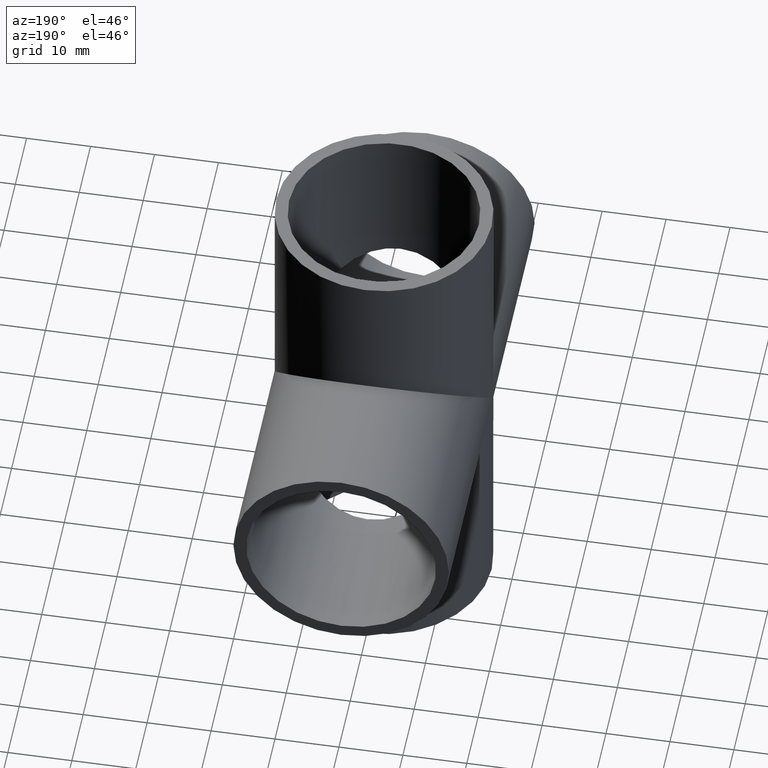
[diagram: clean part render]
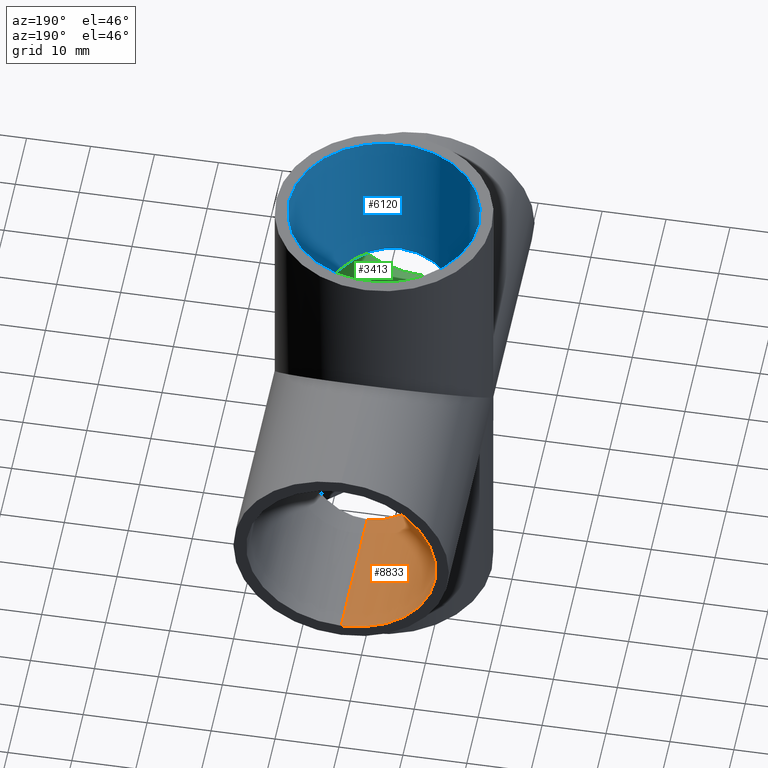
[diagram: same view with three faces highlighted in distinct colors, each labeled with its STEP entity id]
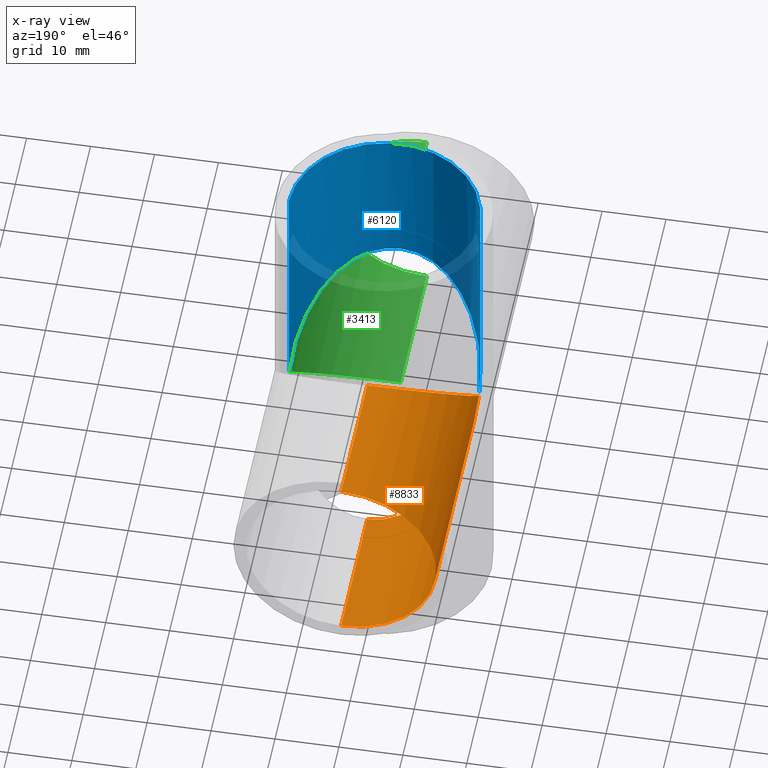
[diagram: x-ray of the same camera — body ghosted, the three highlighted faces saturated]
A machine part, auxiliary view with three faces highlighted in distinct colors.
The next image is the same camera in x-ray (body ghosted, the three faces saturated) — at least one of them is partly hidden behind the body in this view.
Their STEP definitions:

[orange] entity #8833 — the highlighted cylindrical surface (partial cylindrical patch) has radius 14.85 mm, axis along (-0, -1, -0).
#105 = ORIENTED_EDGE ( 'NONE', *, *, #4434, .T. ) ;
#236 = VERTEX_POINT ( 'NONE', #1720 ) ;
#246 = ORIENTED_EDGE ( 'NONE', *, *, #4116, .T. ) ;
#318 = DIRECTION ( 'NONE',  ( -0.0000000000000000000, -1.000000000000000000, -0.0000000000000000000 ) ) ;
#760 = FACE_OUTER_BOUND ( 'NONE', #9163, .T. ) ;
#912 = CARTESIAN_POINT ( 'NONE',  ( -14.84999999999999600, 8.698928598759536600, 8.698928598759536600 ) ) ;
#989 = EDGE_CURVE ( 'NONE', #8117, #3122, #9620, .T. ) ;
#1061 = VERTEX_POINT ( 'NONE', #5345 ) ;
#1286 = CARTESIAN_POINT ( 'NONE',  ( 0.0000000000000000000, 38.00000000000000000, 0.0000000000000000000 ) ) ;
#1712 = CARTESIAN_POINT ( 'NONE',  ( -8.698928598759538400, 14.84999999999999600, -14.84999999999999600 ) ) ;
#1720 = CARTESIAN_POINT ( 'NONE',  ( 0.0000000000000000000, 38.00000000000000000, -14.85000000000000000 ) ) ;
#2143 = CARTESIAN_POINT ( 'NONE',  ( 0.0000000000000000000, 38.00000000000000000, -14.85000000000000000 ) ) ;
#2288 =( BOUNDED_CURVE ( )  B_SPLINE_CURVE ( 3, ( #2684, #912, #3561, #9646 ),
 .UNSPECIFIED., .F., .F. ) 
 B_SPLINE_CURVE_WITH_KNOTS ( ( 4, 4 ),
 ( 1.570796326794896600, 3.141592653589793100 ),
 .UNSPECIFIED. ) 
 CURVE ( )  GEOMETRIC_REPRESENTATION_ITEM ( )  RATIONAL_B_SPLINE_CURVE ( ( 1.000000000000000000, 0.8047378541243649400, 0.8047378541243649400, 1.000000000000000000 ) ) 
 REPRESENTATION_ITEM ( '' )  );
#2562 = CARTESIAN_POINT ( 'NONE',  ( -14.84999999999999600, 8.698928598759536600, -8.698928598759536600 ) ) ;
#2684 = CARTESIAN_POINT ( 'NONE',  ( -14.85000000000000300, 0.0000000000000000000, 0.0000000000000000000 ) ) ;
#2816 = CYLINDRICAL_SURFACE ( 'NONE', #6638, 14.85000000000000000 ) ;
#2953 = AXIS2_PLACEMENT_3D ( 'NONE', #9437, #4210, #10303 ) ;
#3122 = VERTEX_POINT ( 'NONE', #9405 ) ;
#3169 = CARTESIAN_POINT ( 'NONE',  ( 0.0000000000000000000, 14.84999999999999800, -14.85000000000000000 ) ) ;
#3497 = CARTESIAN_POINT ( 'NONE',  ( -14.85000000000000300, 0.0000000000000000000, 0.0000000000000000000 ) ) ;
#3537 = ORIENTED_EDGE ( 'NONE', *, *, #6695, .F. ) ;
#3561 = CARTESIAN_POINT ( 'NONE',  ( -8.698928598759540200, 14.84999999999999600, 14.84999999999999600 ) ) ;
#3777 = ORIENTED_EDGE ( 'NONE', *, *, #989, .F. ) ;
#3910 = ORIENTED_EDGE ( 'NONE', *, *, #7980, .F. ) ;
#3962 = CIRCLE ( 'NONE', #2953, 14.85000000000000000 ) ;
#4116 = EDGE_CURVE ( 'NONE', #236, #1061, #3962, .T. ) ;
#4210 = DIRECTION ( 'NONE',  ( 0.0000000000000000000, 1.000000000000000000, 0.0000000000000000000 ) ) ;
#4434 = EDGE_CURVE ( 'NONE', #1061, #6648, #11031, .T. ) ;
#5299 = VECTOR ( 'NONE', #7333, 1000.000000000000000 ) ;
#5345 = CARTESIAN_POINT ( 'NONE',  ( 1.818600496733819600E-015, 38.00000000000000000, 14.85000000000000000 ) ) ;
#6400 = CARTESIAN_POINT ( 'NONE',  ( 1.818600496733819600E-015, 38.00000000000000000, 14.85000000000000000 ) ) ;
#6489 = DIRECTION ( 'NONE',  ( 0.0000000000000000000, 0.0000000000000000000, -1.000000000000000000 ) ) ;
#6638 = AXIS2_PLACEMENT_3D ( 'NONE', #1286, #7362, #6489 ) ;
#6648 = VERTEX_POINT ( 'NONE', #10664 ) ;
#6675 = VECTOR ( 'NONE', #318, 1000.000000000000000 ) ;
#6695 = EDGE_CURVE ( 'NONE', #236, #8117, #9946, .T. ) ;
#7333 = DIRECTION ( 'NONE',  ( -0.0000000000000000000, -1.000000000000000000, -0.0000000000000000000 ) ) ;
#7362 = DIRECTION ( 'NONE',  ( -0.0000000000000000000, -1.000000000000000000, -0.0000000000000000000 ) ) ;
#7980 = EDGE_CURVE ( 'NONE', #3122, #6648, #2288, .T. ) ;
#8117 = VERTEX_POINT ( 'NONE', #11228 ) ;
#8833 = ADVANCED_FACE ( 'NONE', ( #760 ), #2816, .F. ) ;
#9163 = EDGE_LOOP ( 'NONE', ( #246, #105, #3910, #3777, #3537 ) ) ;
#9405 = CARTESIAN_POINT ( 'NONE',  ( -14.85000000000000300, 0.0000000000000000000, 0.0000000000000000000 ) ) ;
#9437 = CARTESIAN_POINT ( 'NONE',  ( 0.0000000000000000000, 38.00000000000000000, 0.0000000000000000000 ) ) ;
#9620 =( BOUNDED_CURVE ( )  B_SPLINE_CURVE ( 3, ( #3169, #1712, #2562, #3497 ),
 .UNSPECIFIED., .F., .T. ) 
 B_SPLINE_CURVE_WITH_KNOTS ( ( 4, 4 ),
 ( 0.0000000000000000000, 1.570796326794896800 ),
 .UNSPECIFIED. ) 
 CURVE ( )  GEOMETRIC_REPRESENTATION_ITEM ( )  RATIONAL_B_SPLINE_CURVE ( ( 1.000000000000000000, 0.8047378541243649400, 0.8047378541243649400, 1.000000000000000000 ) ) 
 REPRESENTATION_ITEM ( '' )  );
#9646 = CARTESIAN_POINT ( 'NONE',  ( 1.818600496733819600E-015, 14.84999999999999800, 14.85000000000000000 ) ) ;
#9946 = LINE ( 'NONE', #2143, #5299 ) ;
#10303 = DIRECTION ( 'NONE',  ( 0.0000000000000000000, 0.0000000000000000000, 1.000000000000000000 ) ) ;
#10664 = CARTESIAN_POINT ( 'NONE',  ( 1.818600496733819600E-015, 14.84999999999999800, 14.85000000000000000 ) ) ;
#11031 = LINE ( 'NONE', #6400, #6675 ) ;
#11228 = CARTESIAN_POINT ( 'NONE',  ( 0.0000000000000000000, 14.84999999999999800, -14.85000000000000000 ) ) ;

[blue] entity #6120 — the highlighted cylindrical surface (partial cylindrical patch) has radius 14.85 mm, axis along (-0, -0, -1).
#27 = CARTESIAN_POINT ( 'NONE',  ( -14.73456172160043600, -1.848023504273507100, 18.81210979233440000 ) ) ;
#34 = CARTESIAN_POINT ( 'NONE',  ( -14.50004707780246300, -3.204861111111114300, 20.88261217948717500 ) ) ;
#41 = CARTESIAN_POINT ( 'NONE',  ( -14.58982165144694500, -2.767598991720088700, 22.56169871794871500 ) ) ;
#52 = CARTESIAN_POINT ( 'NONE',  ( -14.56416761953289000, -2.899572649572652600, 15.70966880341880600 ) ) ;
#54 = EDGE_CURVE ( 'NONE', #1754, #3979, #1163, .T. ) ;
#71 = CARTESIAN_POINT ( 'NONE',  ( -14.64220264315060200, -2.475560897435900500, 22.88076756143162200 ) ) ;
#74 = CARTESIAN_POINT ( 'NONE',  ( -14.84999172751882700, -0.01572333099768938000, 20.44957341584769800 ) ) ;
#77 = CARTESIAN_POINT ( 'NONE',  ( 14.84999999999999600, -8.698928598759536600, 8.698928598759536600 ) ) ;
#123 = CARTESIAN_POINT ( 'NONE',  ( -14.73026765228740800, -1.881944444444447300, 38.00000000000000000 ) ) ;
#124 = VECTOR ( 'NONE', #572, 1000.000000000000000 ) ;
#126 = CARTESIAN_POINT ( 'NONE',  ( 0.0000000000000000000, 0.0000000000000000000, 15.70966880341880600 ) ) ;
#129 = CARTESIAN_POINT ( 'NONE',  ( -14.64443929474967700, -2.462604760027172500, 16.80437171508008000 ) ) ;
#130 = VERTEX_POINT ( 'NONE', #3730 ) ;
#132 = CARTESIAN_POINT ( 'NONE',  ( -14.84999155843270000, -0.01587137685478040600, 17.38918729193469700 ) ) ;
#134 = CARTESIAN_POINT ( 'NONE',  ( -14.52216516222309300, -3.103098290598293600, 21.87983481904380400 ) ) ;
#135 = CARTESIAN_POINT ( 'NONE',  ( -14.71175359326743300, -2.022795441989680800, 18.47482379483311000 ) ) ;
#137 = FACE_BOUND ( 'NONE', #1322, .T. ) ;
#139 = DIRECTION ( 'NONE',  ( 0.0000000000000000000, 0.0000000000000000000, 1.000000000000000000 ) ) ;
#141 = DIRECTION ( 'NONE',  ( 0.0000000000000000000, 0.0000000000000000000, 1.000000000000000000 ) ) ;
#144 = EDGE_CURVE ( 'NONE', #4431, #9936, #6551, .T. ) ;
#162 = CARTESIAN_POINT ( 'NONE',  ( -14.56111418303238400, -2.915306975753125600, 22.28264197284765300 ) ) ;
#172 = LINE ( 'NONE', #6670, #6828 ) ;
#174 = CARTESIAN_POINT ( 'NONE',  ( -14.52387711898802900, -3.095123581448026700, 21.79104937261917400 ) ) ;
#176 = VERTEX_POINT ( 'NONE', #8804 ) ;
#179 = CARTESIAN_POINT ( 'NONE',  ( -14.85000000000000700, -0.01147758841644687700, 17.52654947811956300 ) ) ;
#182 = CARTESIAN_POINT ( 'NONE',  ( -14.55912869069465100, -2.925611819501599400, 14.74092257493849800 ) ) ;
#196 = B_SPLINE_CURVE_WITH_KNOTS ( 'NONE', 3,
 ( #3148, #9240, #132, #9851 ),
 .UNSPECIFIED., .F., .F.,
 ( 4, 4 ),
 ( 0.0003122501354589170100, 0.0004517222834945358900 ),
 .UNSPECIFIED. ) ;
#200 = EDGE_CURVE ( 'NONE', #1210, #10174, #9974, .T. ) ;
#209 = CARTESIAN_POINT ( 'NONE',  ( -14.66037236169159300, -2.365582849225430300, 21.99749808026175700 ) ) ;
#216 = ORIENTED_EDGE ( 'NONE', *, *, #373, .T. ) ;
#224 =( BOUNDED_CURVE ( )  B_SPLINE_CURVE ( 3, ( #2467, #7651, #8517, #3330 ),
 .UNSPECIFIED., .F., .F. ) 
 B_SPLINE_CURVE_WITH_KNOTS ( ( 4, 4 ),
 ( 1.707085072984606100, 1.730776373722776400 ),
 .UNSPECIFIED. ) 
 CURVE ( )  GEOMETRIC_REPRESENTATION_ITEM ( )  RATIONAL_B_SPLINE_CURVE ( ( 1.000000000000000000, 0.9999532274027069800, 0.9999532274027069800, 1.000000000000000000 ) ) 
 REPRESENTATION_ITEM ( '' )  );
#226 = VERTEX_POINT ( 'NONE', #4226 ) ;
#231 = DIRECTION ( 'NONE',  ( 0.0000000000000000000, 0.0000000000000000000, 1.000000000000000000 ) ) ;
#238 = CARTESIAN_POINT ( 'NONE',  ( -14.72518647134776500, -1.921672188253194400, 16.89713396308832900 ) ) ;
#256 = VERTEX_POINT ( 'NONE', #2986 ) ;
#261 = ORIENTED_EDGE ( 'NONE', *, *, #3398, .T. ) ;
#262 = EDGE_CURVE ( 'NONE', #9133, #5276, #5906, .T. ) ;
#283 = VERTEX_POINT ( 'NONE', #11221 ) ;
#322 = CARTESIAN_POINT ( 'NONE',  ( -14.59052494634365800, -2.763888888888891500, 38.00000000000000000 ) ) ;
#341 = VECTOR ( 'NONE', #10321, 1000.000000000000000 ) ;
#345 = CARTESIAN_POINT ( 'NONE',  ( 14.85000000000000000, 0.0000000000000000000, -9.093002483669097800E-016 ) ) ;
#346 = CARTESIAN_POINT ( 'NONE',  ( -14.58886561642403700, -2.772634131276712200, 21.42534722222222900 ) ) ;
#352 = B_SPLINE_CURVE_WITH_KNOTS ( 'NONE', 3,
 ( #4515, #10607, #179, #6249 ),
 .UNSPECIFIED., .F., .F.,
 ( 4, 4 ),
 ( 0.0000000000000000000, 0.0001354148065904598600 ),
 .UNSPECIFIED. ) ;
#357 = VERTEX_POINT ( 'NONE', #10770 ) ;
#373 = EDGE_CURVE ( 'NONE', #1214, #1210, #1849, .T. ) ;
#374 = LINE ( 'NONE', #1051, #9379 ) ;
#375 = VERTEX_POINT ( 'NONE', #7770 ) ;
#395 = CARTESIAN_POINT ( 'NONE',  ( -14.49887617129146900, -3.210175819305124600, 18.96570431886437500 ) ) ;
#400 = VERTEX_POINT ( 'NONE', #5058 ) ;
#407 = CARTESIAN_POINT ( 'NONE',  ( -14.85000000000000300, -2.145661338873071200E-015, 38.00000000000000000 ) ) ;
#413 = EDGE_CURVE ( 'NONE', #4868, #10785, #6396, .T. ) ;
#418 = VERTEX_POINT ( 'NONE', #3661 ) ;
#426 = LINE ( 'NONE', #2503, #9423 ) ;
#428 =( BOUNDED_CURVE ( )  B_SPLINE_CURVE ( 3, ( #3447, #8634, #5192, #11264 ),
 .UNSPECIFIED., .F., .T. ) 
 B_SPLINE_CURVE_WITH_KNOTS ( ( 4, 4 ),
 ( 1.754721974791197100, 1.778975376418713900 ),
 .UNSPECIFIED. ) 
 CURVE ( )  GEOMETRIC_REPRESENTATION_ITEM ( )  RATIONAL_B_SPLINE_CURVE ( ( 1.000000000000000000, 0.9999509816431695300, 0.9999509816431695300, 1.000000000000000000 ) ) 
 REPRESENTATION_ITEM ( '' )  );
#436 = CARTESIAN_POINT ( 'NONE',  ( 0.0000000000000000000, 0.0000000000000000000, 20.88261217948717500 ) ) ;
#443 = ORIENTED_EDGE ( 'NONE', *, *, #200, .T. ) ;
#454 = DIRECTION ( 'NONE',  ( 0.0000000000000000000, 0.0000000000000000000, -1.000000000000000000 ) ) ;
#464 = CARTESIAN_POINT ( 'NONE',  ( -14.67988758107137100, -2.241294404380344700, 16.74425747863248000 ) ) ;
#482 = VERTEX_POINT ( 'NONE', #1368 ) ;
#485 = B_SPLINE_CURVE_WITH_KNOTS ( 'NONE', 3,
 ( #4132, #2270, #544, #1385 ),
 .UNSPECIFIED., .F., .F.,
 ( 4, 4 ),
 ( 0.0000000000000000000, 0.0003009990987655934000 ),
 .UNSPECIFIED. ) ;
#486 = EDGE_CURVE ( 'NONE', #6215, #7050, #10125, .T. ) ;
#490 = ORIENTED_EDGE ( 'NONE', *, *, #9398, .T. ) ;
#494 = CARTESIAN_POINT ( 'NONE',  ( -14.65869100253752700, -2.408514913823789800, 19.77438537582399300 ) ) ;
#509 = CARTESIAN_POINT ( 'NONE',  ( -14.65615251822034000, -2.391684666165157400, 21.62351370788497100 ) ) ;
#512 = CARTESIAN_POINT ( 'NONE',  ( -14.67252529607921100, -2.288995726495729200, 17.57532051282051500 ) ) ;
#526 = CARTESIAN_POINT ( 'NONE',  ( -14.69204012226180500, -2.161331125718765300, 14.74186587884419300 ) ) ;
#530 = CARTESIAN_POINT ( 'NONE',  ( -14.85000000000000300, -3.211811764660815900E-015, 38.00000000000000000 ) ) ;
#544 = CARTESIAN_POINT ( 'NONE',  ( -14.63682550716862500, -2.507423518474488900, 23.07871144416032300 ) ) ;
#547 = VECTOR ( 'NONE', #8177, 1000.000000000000000 ) ;
#551 = VERTEX_POINT ( 'NONE', #3226 ) ;
#565 = B_SPLINE_CURVE_WITH_KNOTS ( 'NONE', 3,
 ( #1880, #7928, #8836, #3632, #9721, #4490, #10582, #5371, #162, #6221 ),
 .UNSPECIFIED., .F., .F.,
 ( 4, 2, 2, 2, 4 ),
 ( 0.0000000000000000000, 0.0001515673275128925900, 0.0003031346550257851700, 0.0004547019825386777600, 0.0006062693100515703500 ),
 .UNSPECIFIED. ) ;
#572 = DIRECTION ( 'NONE',  ( -0.0000000000000000000, -0.0000000000000000000, -1.000000000000000000 ) ) ;
#576 = CARTESIAN_POINT ( 'NONE',  ( -14.49250809295248600, -3.238782051282054200, 15.14864825387286400 ) ) ;
#583 = EDGE_CURVE ( 'NONE', #3926, #9801, #5569, .T. ) ;
#589 = CARTESIAN_POINT ( 'NONE',  ( -14.63721500122606200, -2.504913150135814600, 21.70245230151643800 ) ) ;
#595 = CARTESIAN_POINT ( 'NONE',  ( -14.63057081285594800, -2.543402777777780800, 22.15464743589743800 ) ) ;
#636 = EDGE_CURVE ( 'NONE', #1624, #4815, #485, .T. ) ;
#639 = ORIENTED_EDGE ( 'NONE', *, *, #1325, .T. ) ;
#645 = CARTESIAN_POINT ( 'NONE',  ( -14.73026765228741100, -1.881944444444447300, 21.00849066840277500 ) ) ;
#665 = CARTESIAN_POINT ( 'NONE',  ( -14.50004707780246300, -3.204861111111114300, 16.72729700854700900 ) ) ;
#684 = B_SPLINE_CURVE_WITH_KNOTS ( 'NONE', 3,
 ( #1252, #6448, #8187, #3012, #9093, #3869, #9965, #4747, #10835, #5616 ),
 .UNSPECIFIED., .F., .F.,
 ( 4, 3, 3, 4 ),
 ( 0.0000000000000000000, 3.967853954546680500E-005, 7.938922823516067800E-005, 0.0001587106871340224300 ),
 .UNSPECIFIED. ) ;
#688 = B_SPLINE_CURVE_WITH_KNOTS ( 'NONE', 3,
 ( #723, #4035, #3276, #4260, #8229, #788, #10028, #7378, #7410, #1563, #3313, #5020 ),
 .UNSPECIFIED., .F., .F.,
 ( 4, 2, 2, 2, 2, 4 ),
 ( 0.0000000000000000000, 0.0002312696900052215400, 0.0004625393800104430700, 0.0006938090700156645800, 0.0008094439150182754200, 0.0009250787600208861500 ),
 .UNSPECIFIED. ) ;
#693 = CARTESIAN_POINT ( 'NONE',  ( -14.71613015314789100, -1.989516864899184600, 17.07620924957550900 ) ) ;
#723 = CARTESIAN_POINT ( 'NONE',  ( -14.63047866432969000, -2.543932792467951600, 15.59094551282051500 ) ) ;
#730 = EDGE_CURVE ( 'NONE', #8127, #10354, #1391, .T. ) ;
#750 = DIRECTION ( 'NONE',  ( -0.0000000000000000000, -0.0000000000000000000, -1.000000000000000000 ) ) ;
#761 = CARTESIAN_POINT ( 'NONE',  ( -14.62104970179496600, -2.598270989708946700, 17.05654687767961200 ) ) ;
#764 = ORIENTED_EDGE ( 'NONE', *, *, #8194, .F. ) ;
#788 = CARTESIAN_POINT ( 'NONE',  ( -14.71148457828470900, -2.024761317592541900, 15.48268905999991000 ) ) ;
#794 = CARTESIAN_POINT ( 'NONE',  ( -14.85000000000000300, -2.705448381606942100E-015, 19.50033386752137300 ) ) ;
#802 = CARTESIAN_POINT ( 'NONE',  ( -14.54565085630250500, -2.991233609980392200, 23.13936105082766300 ) ) ;
#803 = DIRECTION ( 'NONE',  ( 1.000000000000000000, 0.0000000000000000000, 0.0000000000000000000 ) ) ;
#809 = CARTESIAN_POINT ( 'NONE',  ( -14.49671116578244100, -3.219974652068738200, 20.10268080550458300 ) ) ;
#829 = VECTOR ( 'NONE', #7320, 1000.000000000000000 ) ;
#833 = CARTESIAN_POINT ( 'NONE',  ( -14.50854993798558600, -3.166349009921319600, 23.14350156628420400 ) ) ;
#834 = CARTESIAN_POINT ( 'NONE',  ( -14.65641304594140200, -2.391213330885472800, 19.25084803481224700 ) ) ;
#848 = ORIENTED_EDGE ( 'NONE', *, *, #930, .T. ) ;
#851 = EDGE_CURVE ( 'NONE', #962, #8273, #1702, .T. ) ;
#879 = VERTEX_POINT ( 'NONE', #10998 ) ;
#894 = CARTESIAN_POINT ( 'NONE',  ( 0.0000000000000000000, 0.0000000000000000000, 38.00000000000000000 ) ) ;
#899 = EDGE_CURVE ( 'NONE', #4783, #7732, #4014, .T. ) ;
#905 = EDGE_CURVE ( 'NONE', #9099, #10096, #10692, .T. ) ;
#910 = VERTEX_POINT ( 'NONE', #6867 ) ;
#919 = CARTESIAN_POINT ( 'NONE',  ( -14.71229677602621100, -2.017628205128208400, 20.18723290598290600 ) ) ;
#929 = CARTESIAN_POINT ( 'NONE',  ( -14.73026765228740800, -1.881944444444447300, 20.18723290598290600 ) ) ;
#930 = EDGE_CURVE ( 'NONE', #7212, #2951, #10408, .T. ) ;
#948 = EDGE_CURVE ( 'NONE', #1348, #3926, #688, .T. ) ;
#960 = CIRCLE ( 'NONE', #1323, 14.85000000000000300 ) ;
#962 = VERTEX_POINT ( 'NONE', #10966 ) ;
#988 = ORIENTED_EDGE ( 'NONE', *, *, #8602, .F. ) ;
#991 = CARTESIAN_POINT ( 'NONE',  ( -14.73026765228740800, -1.881944444444447800, 38.00000000000000000 ) ) ;
#992 = DIRECTION ( 'NONE',  ( -0.0000000000000000000, -0.0000000000000000000, -1.000000000000000000 ) ) ;
#995 = DIRECTION ( 'NONE',  ( 1.000000000000000000, 0.0000000000000000000, 0.0000000000000000000 ) ) ;
#998 = CARTESIAN_POINT ( 'NONE',  ( -14.49250809295248600, -3.238782051282054200, 18.81210979233440000 ) ) ;
#1008 = CARTESIAN_POINT ( 'NONE',  ( -14.68075166569690500, -2.236961579545934300, 18.38348835082564400 ) ) ;
#1011 = CARTESIAN_POINT ( 'NONE',  ( -14.85000000000000300, -0.01203959449271425900, 21.88544103758950500 ) ) ;
#1027 = CARTESIAN_POINT ( 'NONE',  ( -14.85000000000000300, 5.591600545147459700E-012, 17.57039110364007300 ) ) ;
#1028 = LINE ( 'NONE', #123, #10035 ) ;
#1036 = VECTOR ( 'NONE', #9061, 1000.000000000000000 ) ;
#1041 = CARTESIAN_POINT ( 'NONE',  ( -14.65136457577493100, -2.421153150116630600, 16.78087937902456200 ) ) ;
#1043 = CARTESIAN_POINT ( 'NONE',  ( -14.53640618300790700, -3.035851894467056500, 21.67182679814650100 ) ) ;
#1048 = CARTESIAN_POINT ( 'NONE',  ( -14.58886561642403700, -2.772634131276713100, 22.44297542735042600 ) ) ;
#1050 = ORIENTED_EDGE ( 'NONE', *, *, #9461, .T. ) ;
#1051 = CARTESIAN_POINT ( 'NONE',  ( -14.85000000000000300, 0.0000000000000000000, 38.00000000000000000 ) ) ;
#1052 = CARTESIAN_POINT ( 'NONE',  ( -14.51725103937407700, -3.126333710893020300, 14.85997428125830000 ) ) ;
#1063 = CARTESIAN_POINT ( 'NONE',  ( -14.71229677602621800, -2.017628205128208400, 19.57400590945512800 ) ) ;
#1071 = ORIENTED_EDGE ( 'NONE', *, *, #4407, .T. ) ;
#1080 = ORIENTED_EDGE ( 'NONE', *, *, #9934, .T. ) ;
#1084 = EDGE_CURVE ( 'NONE', #3428, #5693, #196, .T. ) ;
#1089 = LINE ( 'NONE', #4457, #10088 ) ;
#1102 = CARTESIAN_POINT ( 'NONE',  ( -14.66430105475820700, -2.341105748003279100, 22.80253793269891500 ) ) ;
#1111 = CARTESIAN_POINT ( 'NONE',  ( -14.63057081285594800, -2.543402777777780800, 22.15464743589743800 ) ) ;
#1113 = CARTESIAN_POINT ( 'NONE',  ( -14.70915526895426100, -2.040976594498669100, 16.79319972991684300 ) ) ;
#1122 = CARTESIAN_POINT ( 'NONE',  ( -14.67276946466330400, -2.287916190637070200, 16.74587689290307700 ) ) ;
#1127 = CARTESIAN_POINT ( 'NONE',  ( -14.66037236169159300, -2.365582849225430300, 21.99749808026175700 ) ) ;
#1131 = CARTESIAN_POINT ( 'NONE',  ( -14.59272498729768100, -2.790343678661900900, 19.83868494941678800 ) ) ;
#1151 = VECTOR ( 'NONE', #2380, 1000.000000000000000 ) ;
#1163 = LINE ( 'NONE', #7242, #7804 ) ;
#1171 = CARTESIAN_POINT ( 'NONE',  ( -14.66449709280562900, -2.339877136752140700, 22.85930196647970200 ) ) ;
#1179 = CARTESIAN_POINT ( 'NONE',  ( -14.50500744052164100, -3.182335486778848900, 20.17106745793269300 ) ) ;
#1186 = CARTESIAN_POINT ( 'NONE',  ( -14.54022922591151000, -3.023061332877849100, 17.45584162750112600 ) ) ;
#1189 = AXIS2_PLACEMENT_3D ( 'NONE', #5659, #454, #6534 ) ;
#1197 = CARTESIAN_POINT ( 'NONE',  ( -14.61557517869469100, -2.628205128205131300, 17.72796474358974100 ) ) ;
#1202 = CARTESIAN_POINT ( 'NONE',  ( -14.66150599112660500, -2.358548779095356100, 21.97201973608163800 ) ) ;
#1206 = CARTESIAN_POINT ( 'NONE',  ( -14.61703032055304700, -2.621275915398428900, 18.35644368951648900 ) ) ;
#1208 = CARTESIAN_POINT ( 'NONE',  ( -14.85000000000000500, -4.795286448467089200E-014, 17.29798859007675900 ) ) ;
#1210 = VERTEX_POINT ( 'NONE', #6674 ) ;
#1214 = VERTEX_POINT ( 'NONE', #665 ) ;
#1234 = ORIENTED_EDGE ( 'NONE', *, *, #3484, .F. ) ;
#1252 = CARTESIAN_POINT ( 'NONE',  ( -14.66037236169159100, -2.365582849225430700, 23.01512628538995400 ) ) ;
#1253 = VECTOR ( 'NONE', #10143, 1000.000000000000000 ) ;
#1257 = VERTEX_POINT ( 'NONE', #3725 ) ;
#1259 = CARTESIAN_POINT ( 'NONE',  ( -14.57087987324043300, -2.865651709401712700, 23.18923611111110700 ) ) ;
#1270 = DIRECTION ( 'NONE',  ( 0.0000000000000000000, 0.0000000000000000000, 1.000000000000000000 ) ) ;
#1276 = CARTESIAN_POINT ( 'NONE',  ( -14.51718350250274100, -3.126644956597751000, 19.09685370484576700 ) ) ;
#1287 = EDGE_CURVE ( 'NONE', #10754, #400, #4408, .T. ) ;
#1290 = LINE ( 'NONE', #8753, #7926 ) ;
#1307 = DIRECTION ( 'NONE',  ( -1.000000000000000000, 0.0000000000000000000, 0.0000000000000000000 ) ) ;
#1322 = EDGE_LOOP ( 'NONE', ( #9370, #1895, #3489, #4833, #2828, #9970, #6096, #8106, #9714, #9145, #216, #443 ) ) ;
#1323 = AXIS2_PLACEMENT_3D ( 'NONE', #8475, #3282, #9383 ) ;
#1325 = EDGE_CURVE ( 'NONE', #5059, #1824, #6156, .T. ) ;
#1329 = VERTEX_POINT ( 'NONE', #9532 ) ;
#1337 = CARTESIAN_POINT ( 'NONE',  ( 1.818600496733819600E-015, -14.85000000000000100, 14.85000000000000000 ) ) ;
#1340 = DIRECTION ( 'NONE',  ( -0.0000000000000000000, -0.0000000000000000000, -1.000000000000000000 ) ) ;
#1348 = VERTEX_POINT ( 'NONE', #5150 ) ;
#1350 = VERTEX_POINT ( 'NONE', #4301 ) ;
#1357 = EDGE_CURVE ( 'NONE', #8571, #4450, #5901, .T. ) ;
#1368 = CARTESIAN_POINT ( 'NONE',  ( -14.52937198889283900, -3.069177350427353600, 16.72729700854700900 ) ) ;
#1381 = EDGE_CURVE ( 'NONE', #7050, #4334, #1290, .T. ) ;
#1382 = CARTESIAN_POINT ( 'NONE',  ( -14.63689097245835700, -2.507118350105459000, 21.50030083858648000 ) ) ;
#1385 = CARTESIAN_POINT ( 'NONE',  ( -14.63057081285594800, -2.543402777777781200, 23.17227564102563900 ) ) ;
#1387 = CARTESIAN_POINT ( 'NONE',  ( -14.68980007311539100, -2.176054601256179700, 17.56467768878760800 ) ) ;
#1391 = B_SPLINE_CURVE_WITH_KNOTS ( 'NONE', 3,
 ( #464, #1122, #10710, #1041, #129, #9808, #4578, #2773 ),
 .UNSPECIFIED., .F., .F.,
 ( 4, 2, 2, 4 ),
 ( 0.0000000000000000000, 0.0001392982103960800300, 0.0002785964207921600500, 0.0005571928415843142600 ),
 .UNSPECIFIED. ) ;
#1403 = EDGE_CURVE ( 'NONE', #1329, #1459, #3614, .T. ) ;
#1429 = VECTOR ( 'NONE', #7483, 1000.000000000000000 ) ;
#1431 = CARTESIAN_POINT ( 'NONE',  ( -14.73026765228740800, -1.881944444444447300, 38.00000000000000000 ) ) ;
#1444 = CARTESIAN_POINT ( 'NONE',  ( -14.49265733206916600, -3.238114254229960100, 15.18817592658856700 ) ) ;
#1450 = CARTESIAN_POINT ( 'NONE',  ( -14.59052494634365800, -2.763888888888891500, 15.70966880341880600 ) ) ;
#1457 = VECTOR ( 'NONE', #6139, 1000.000000000000000 ) ;
#1459 = VERTEX_POINT ( 'NONE', #2546 ) ;
#1462 = CARTESIAN_POINT ( 'NONE',  ( -14.64204713784421400, -2.476480664835122500, 21.82196208197438000 ) ) ;
#1473 = DIRECTION ( 'NONE',  ( 0.0000000000000000000, 0.0000000000000000000, 1.000000000000000000 ) ) ;
#1474 = CARTESIAN_POINT ( 'NONE',  ( -14.73447478578084400, -1.848716656279767000, 15.10909594242559700 ) ) ;
#1482 = ORIENTED_EDGE ( 'NONE', *, *, #2189, .T. ) ;
#1484 = CARTESIAN_POINT ( 'NONE',  ( -14.49887617129146600, -3.210175819305129500, 15.30224278040281400 ) ) ;
#1511 = CARTESIAN_POINT ( 'NONE',  ( -14.64390978743835200, -2.466688707773167600, 14.69296723753726800 ) ) ;
#1521 =( BOUNDED_CURVE ( )  B_SPLINE_CURVE ( 3, ( #2892, #6326, #1131, #8977 ),
 .UNSPECIFIED., .F., .F. ) 
 B_SPLINE_CURVE_WITH_KNOTS ( ( 4, 4 ),
 ( 1.697868294297002000, 1.790663300812176600 ),
 .UNSPECIFIED. ) 
 CURVE ( )  GEOMETRIC_REPRESENTATION_ITEM ( )  RATIONAL_B_SPLINE_CURVE ( ( 1.000000000000000000, 0.9992825526167830000, 0.9992825526167830000, 1.000000000000000000 ) ) 
 REPRESENTATION_ITEM ( '' )  );
#1538 = CARTESIAN_POINT ( 'NONE',  ( -14.85000000000000300, 0.0000000000000000000, 38.00000000000000000 ) ) ;
#1563 = CARTESIAN_POINT ( 'NONE',  ( -14.73385966681294000, -1.853650051928849900, 15.22760366590730300 ) ) ;
#1565 = VECTOR ( 'NONE', #2845, 1000.000000000000000 ) ;
#1570 = CARTESIAN_POINT ( 'NONE',  ( -14.71690882919901200, -1.983707264957267800, 17.14998372395833200 ) ) ;
#1571 = CARTESIAN_POINT ( 'NONE',  ( -14.71229677602621100, -2.017628205128208400, 22.94383930956196200 ) ) ;
#1585 = EDGE_CURVE ( 'NONE', #6521, #6699, #6544, .T. ) ;
#1612 = VERTEX_POINT ( 'NONE', #10032 ) ;
#1620 = CARTESIAN_POINT ( 'NONE',  ( -14.64220264315060200, -2.475560897435900500, 22.88076756143162200 ) ) ;
#1624 = VERTEX_POINT ( 'NONE', #1620 ) ;
#1641 = CYLINDRICAL_SURFACE ( 'NONE', #9064, 14.85000000000000300 ) ;
#1648 = CARTESIAN_POINT ( 'NONE',  ( -14.63160109121488600, -2.538304653818791700, 17.00073377616719100 ) ) ;
#1649 = LINE ( 'NONE', #9786, #8573 ) ;
#1664 = VERTEX_POINT ( 'NONE', #4696 ) ;
#1671 = LINE ( 'NONE', #8413, #10387 ) ;
#1679 = EDGE_CURVE ( 'NONE', #6567, #8509, #7772, .T. ) ;
#1686 = CARTESIAN_POINT ( 'NONE',  ( -14.85000000000000300, -2.298964014476537400E-015, 38.00000000000000000 ) ) ;
#1698 = DIRECTION ( 'NONE',  ( -0.0000000000000000000, -0.0000000000000000000, -1.000000000000000000 ) ) ;
#1702 = LINE ( 'NONE', #7557, #6311 ) ;
#1721 = CARTESIAN_POINT ( 'NONE',  ( -14.53253439463683900, -3.054514461658099900, 23.24573067934163700 ) ) ;
#1722 = CARTESIAN_POINT ( 'NONE',  ( -14.69166594291784000, -2.163882786112993000, 19.21262576960240400 ) ) ;
#1732 = VECTOR ( 'NONE', #4445, 1000.000000000000000 ) ;
#1752 = B_SPLINE_CURVE_WITH_KNOTS ( 'NONE', 3,
 ( #5635, #8228, #2225, #8270, #3095, #9194, #3960, #10062 ),
 .UNSPECIFIED., .F., .F.,
 ( 4, 2, 2, 4 ),
 ( 0.0000000000000000000, 0.0001030623643643280300, 0.0002061247287286560500, 0.0004122494574573127600 ),
 .UNSPECIFIED. ) ;
#1754 = VERTEX_POINT ( 'NONE', #3741 ) ;
#1768 = CARTESIAN_POINT ( 'NONE',  ( -14.58982165144694500, -2.767598991720088700, 22.56169871794871500 ) ) ;
#1776 = VERTEX_POINT ( 'NONE', #8792 ) ;
#1790 = DIRECTION ( 'NONE',  ( 1.000000000000000000, 0.0000000000000000000, 0.0000000000000000000 ) ) ;
#1793 = LINE ( 'NONE', #4923, #1253 ) ;
#1795 = CARTESIAN_POINT ( 'NONE',  ( -14.84999159260732800, -0.01584145475512996000, 22.03006333139042600 ) ) ;
#1814 = DIRECTION ( 'NONE',  ( 0.0000000000000000000, 0.0000000000000000000, 1.000000000000000000 ) ) ;
#1824 = VERTEX_POINT ( 'NONE', #6589 ) ;
#1830 = CARTESIAN_POINT ( 'NONE',  ( 0.0000000000000000000, 0.0000000000000000000, 16.72729700854700900 ) ) ;
#1841 = CARTESIAN_POINT ( 'NONE',  ( -14.85000000000000300, 5.482509371925565400E-012, 20.53847336859692500 ) ) ;
#1849 = LINE ( 'NONE', #6213, #6735 ) ;
#1872 = EDGE_CURVE ( 'NONE', #7524, #256, #4678, .T. ) ;
#1873 =( BOUNDED_CURVE ( )  B_SPLINE_CURVE ( 3, ( #1111, #5711, #4654, #4379 ),
 .UNSPECIFIED., .F., .T. ) 
 B_SPLINE_CURVE_WITH_KNOTS ( ( 4, 4 ),
 ( 4.540267450471123600, 4.585317012882583800 ),
 .UNSPECIFIED. ) 
 CURVE ( )  GEOMETRIC_REPRESENTATION_ITEM ( )  RATIONAL_B_SPLINE_CURVE ( ( 1.000000000000000000, 0.9998308852276466300, 0.9998308852276466300, 1.000000000000000000 ) ) 
 REPRESENTATION_ITEM ( '' )  );
#1879 = EDGE_CURVE ( 'NONE', #5680, #10794, #10250, .T. ) ;
#1880 = CARTESIAN_POINT ( 'NONE',  ( -14.49250809295248600, -3.238782051282054200, 21.88672501001602900 ) ) ;
#1895 = ORIENTED_EDGE ( 'NONE', *, *, #10323, .T. ) ;
#1898 = EDGE_CURVE ( 'NONE', #8138, #11143, #2103, .T. ) ;
#1901 = CARTESIAN_POINT ( 'NONE',  ( -14.64390978743834600, -2.466688707773176100, 18.35642877599879300 ) ) ;
#1904 = CARTESIAN_POINT ( 'NONE',  ( -14.85000000000000300, 0.0000000000000000000, 38.00000000000000000 ) ) ;
#1913 = CIRCLE ( 'NONE', #6270, 14.85000000000000300 ) ;
#1915 = ORIENTED_EDGE ( 'NONE', *, *, #3336, .T. ) ;
#1921 = FACE_OUTER_BOUND ( 'NONE', #8659, .T. ) ;
#1923 = EDGE_CURVE ( 'NONE', #7976, #9992, #1873, .T. ) ;
#1940 = CARTESIAN_POINT ( 'NONE',  ( -14.55677312784588500, -2.936758835814706500, 21.58383932903891300 ) ) ;
#1943 = ORIENTED_EDGE ( 'NONE', *, *, #3862, .T. ) ;
#1948 = ORIENTED_EDGE ( 'NONE', *, *, #6531, .T. ) ;
#1950 = CARTESIAN_POINT ( 'NONE',  ( -14.49276748644118300, -3.237621348840641100, 15.06891318072683100 ) ) ;
#1966 = CARTESIAN_POINT ( 'NONE',  ( -14.84999031455760300, -0.01696047008547296400, 20.40400891426282100 ) ) ;
#1976 = DIRECTION ( 'NONE',  ( -0.0000000000000000000, -0.0000000000000000000, -1.000000000000000000 ) ) ;
#1985 = CARTESIAN_POINT ( 'NONE',  ( 0.0000000000000000000, 0.0000000000000000000, 22.49385683760683500 ) ) ;
#1997 = CARTESIAN_POINT ( 'NONE',  ( -14.68788316767947300, -2.188925419599836000, 16.74583026044488000 ) ) ;
#2018 = ORIENTED_EDGE ( 'NONE', *, *, #6042, .T. ) ;
#2032 = ORIENTED_EDGE ( 'NONE', *, *, #6330, .F. ) ;
#2051 = ORIENTED_EDGE ( 'NONE', *, *, #1679, .T. ) ;
#2081 = CARTESIAN_POINT ( 'NONE',  ( -14.49263481381675900, -3.238215016167648400, 21.82413946720968000 ) ) ;
#2093 = CARTESIAN_POINT ( 'NONE',  ( -14.66252289122527800, -2.352218685659717100, 21.94634967337500000 ) ) ;
#2103 = LINE ( 'NONE', #4846, #11062 ) ;
#2132 = CARTESIAN_POINT ( 'NONE',  ( -14.85000000000000300, 0.0000000000000000000, 38.00000000000000000 ) ) ;
#2137 = VECTOR ( 'NONE', #10083, 1000.000000000000000 ) ;
#2157 = CARTESIAN_POINT ( 'NONE',  ( -14.55937441557791900, -2.924389689607677300, 19.21159777632266600 ) ) ;
#2164 =( BOUNDED_CURVE ( )  B_SPLINE_CURVE ( 3, ( #2351, #7708, #3474, #10368 ),
 .UNSPECIFIED., .F., .F. ) 
 B_SPLINE_CURVE_WITH_KNOTS ( ( 4, 4 ),
 ( 1.707085072984606100, 1.730776373722776400 ),
 .UNSPECIFIED. ) 
 CURVE ( )  GEOMETRIC_REPRESENTATION_ITEM ( )  RATIONAL_B_SPLINE_CURVE ( ( 1.000000000000000000, 0.9999532274027069800, 0.9999532274027069800, 1.000000000000000000 ) ) 
 REPRESENTATION_ITEM ( '' )  );
#2188 = CIRCLE ( 'NONE', #8009, 14.85000000000000300 ) ;
#2189 = EDGE_CURVE ( 'NONE', #9936, #256, #7078, .T. ) ;
#2200 = FACE_BOUND ( 'NONE', #7958, .T. ) ;
#2209 = VECTOR ( 'NONE', #6944, 1000.000000000000000 ) ;
#2213 = CARTESIAN_POINT ( 'NONE',  ( -14.68075166569691000, -2.236961579545894400, 14.72002681236409100 ) ) ;
#2225 = CARTESIAN_POINT ( 'NONE',  ( -14.55786112705849600, -2.931231268291409900, 22.15446083674351700 ) ) ;
#2227 = VERTEX_POINT ( 'NONE', #998 ) ;
#2252 = CARTESIAN_POINT ( 'NONE',  ( -14.71175359326743500, -2.022795441989647000, 14.81136225637159700 ) ) ;
#2268 = CARTESIAN_POINT ( 'NONE',  ( -14.60983130540183300, -2.660479394749724100, 21.43299934390999400 ) ) ;
#2269 = EDGE_CURVE ( 'NONE', #1612, #6946, #172, .T. ) ;
#2270 = CARTESIAN_POINT ( 'NONE',  ( -14.64183909074841900, -2.477711201211375300, 22.98124349406515400 ) ) ;
#2273 = CARTESIAN_POINT ( 'NONE',  ( -14.71205609573503300, -2.019820144005728000, 17.49294505643160800 ) ) ;
#2281 = CARTESIAN_POINT ( 'NONE',  ( 0.0000000000000000000, 0.0000000000000000000, 15.98103632478632700 ) ) ;
#2317 = CARTESIAN_POINT ( 'NONE',  ( -14.59744184709101100, -2.727427964151182500, 21.54501267091324800 ) ) ;
#2325 = CARTESIAN_POINT ( 'NONE',  ( -14.65668637656481200, -2.389562938540541000, 14.69602070868509500 ) ) ;
#2351 = CARTESIAN_POINT ( 'NONE',  ( -14.71229677602621100, -2.017628205128208400, 21.92621110443376500 ) ) ;
#2364 = EDGE_CURVE ( 'NONE', #7732, #2722, #2164, .T. ) ;
#2377 = CARTESIAN_POINT ( 'NONE',  ( -14.51718350250273900, -3.126644956597767400, 15.43339216638419800 ) ) ;
#2380 = DIRECTION ( 'NONE',  ( 0.0000000000000000000, 0.0000000000000000000, 1.000000000000000000 ) ) ;
#2391 = B_SPLINE_CURVE_WITH_KNOTS ( 'NONE', 3,
 ( #7911, #1011, #7951, #2779 ),
 .UNSPECIFIED., .F., .F.,
 ( 4, 4 ),
 ( 0.0004003692797899506200, 0.0005426848436904165600 ),
 .UNSPECIFIED. ) ;
#2392 = CARTESIAN_POINT ( 'NONE',  ( -14.59052494634365800, -2.763888888888891500, 15.86231303418803800 ) ) ;
#2399 = EDGE_CURVE ( 'NONE', #5264, #9652, #3985, .T. ) ;
#2463 = EDGE_CURVE ( 'NONE', #375, #1350, #1671, .T. ) ;
#2467 = CARTESIAN_POINT ( 'NONE',  ( -14.71229677602621100, -2.017628205128208400, 22.94383930956196200 ) ) ;
#2471 = ORIENTED_EDGE ( 'NONE', *, *, #7823, .T. ) ;
#2477 = LINE ( 'NONE', #5219, #2209 ) ;
#2503 = CARTESIAN_POINT ( 'NONE',  ( 14.85000000000000300, 1.818600496733819900E-015, 38.00000000000000000 ) ) ;
#2536 = CARTESIAN_POINT ( 'NONE',  ( -14.65356632895425200, -2.407685804581056300, 16.90193461334302700 ) ) ;
#2537 = ORIENTED_EDGE ( 'NONE', *, *, #9387, .T. ) ;
#2546 = CARTESIAN_POINT ( 'NONE',  ( -14.85000000000000300, -2.145661338873071200E-015, 14.80228365384615300 ) ) ;
#2577 = CARTESIAN_POINT ( 'NONE',  ( 0.0000000000000000000, 0.0000000000000000000, 15.86231303418803800 ) ) ;
#2597 = B_SPLINE_CURVE_WITH_KNOTS ( 'NONE', 3,
 ( #11194, #761, #1648, #7706, #2536, #8597, #3396, #9489 ),
 .UNSPECIFIED., .F., .F.,
 ( 4, 2, 2, 4 ),
 ( 4.091337135425211100E-018, 0.0002474308840103330200, 0.0003711463260154939400, 0.0004948617680206549700 ),
 .UNSPECIFIED. ) ;
#2602 = CARTESIAN_POINT ( 'NONE',  ( -14.56111418303238200, -2.915306975753123800, 23.30027017797584300 ) ) ;
#2603 = CARTESIAN_POINT ( 'NONE',  ( -14.72001548332206000, -1.961031791951024500, 19.09772866281658900 ) ) ;
#2624 = CARTESIAN_POINT ( 'NONE',  ( -14.85000000000000300, -2.298964014476537400E-015, 16.53225160256410600 ) ) ;
#2626 = LINE ( 'NONE', #6891, #2901 ) ;
#2640 = CARTESIAN_POINT ( 'NONE',  ( -14.50004707780246300, -3.204861111111114300, 17.62620192307692000 ) ) ;
#2659 = CARTESIAN_POINT ( 'NONE',  ( -14.56416761953289400, -2.899572649572652600, 16.60857371794871900 ) ) ;
#2670 = EDGE_CURVE ( 'NONE', #8675, #10772, #2626, .T. ) ;
#2675 = CARTESIAN_POINT ( 'NONE',  ( -14.60474294547104700, -2.688017733347669100, 22.56784022015144200 ) ) ;
#2677 = VECTOR ( 'NONE', #8858, 1000.000000000000000 ) ;
#2682 = ORIENTED_EDGE ( 'NONE', *, *, #899, .T. ) ;
#2689 = ORIENTED_EDGE ( 'NONE', *, *, #10783, .T. ) ;
#2694 = CARTESIAN_POINT ( 'NONE',  ( -14.50004707780246300, -3.204861111111114300, 38.00000000000000000 ) ) ;
#2700 = ORIENTED_EDGE ( 'NONE', *, *, #5277, .T. ) ;
#2706 = DIRECTION ( 'NONE',  ( 1.000000000000000000, 0.0000000000000000000, 0.0000000000000000000 ) ) ;
#2713 = ORIENTED_EDGE ( 'NONE', *, *, #7415, .T. ) ;
#2717 = CARTESIAN_POINT ( 'NONE',  ( -14.85000000000000300, 0.0000000000000000000, 38.00000000000000000 ) ) ;
#2722 = VERTEX_POINT ( 'NONE', #1127 ) ;
#2741 = B_SPLINE_CURVE_WITH_KNOTS ( 'NONE', 3,
 ( #4847, #10068, #5714, #509, #6593, #1382, #7453, #2268, #8318, #3143 ),
 .UNSPECIFIED., .F., .F.,
 ( 4, 2, 2, 2, 4 ),
 ( 3.496446946337351300E-018, 0.0001686004046069296400, 0.0003372008092138557600, 0.0005058012138207818900, 0.0006744016184277080600 ),
 .UNSPECIFIED. ) ;
#2760 = B_SPLINE_CURVE_WITH_KNOTS ( 'NONE', 3,
 ( #8776, #8862, #10614, #5392, #182, #6253, #1052, #7129, #1950, #7990 ),
 .UNSPECIFIED., .F., .F.,
 ( 4, 2, 2, 2, 4 ),
 ( 0.0000000000000000000, 0.0002339752340576003000, 0.0004679504681152005900, 0.0007019257021728008600, 0.0009359009362304011800 ),
 .UNSPECIFIED. ) ;
#2767 = VERTEX_POINT ( 'NONE', #2965 ) ;
#2773 = CARTESIAN_POINT ( 'NONE',  ( -14.59952960376422100, -2.715922559428421800, 17.01191489716880400 ) ) ;
#2779 = CARTESIAN_POINT ( 'NONE',  ( -14.84999031455760300, -0.01696047008547317500, 21.98212765424679200 ) ) ;
#2792 = CARTESIAN_POINT ( 'NONE',  ( -14.71208566464724900, -2.019220423513543600, 17.30605603317478700 ) ) ;
#2806 = CARTESIAN_POINT ( 'NONE',  ( -14.58145997052676000, -2.811678872402510400, 21.54526233595420900 ) ) ;
#2809 = CARTESIAN_POINT ( 'NONE',  ( -14.70200500440846600, -2.103160521809613700, 23.08196953723729200 ) ) ;
#2811 = CARTESIAN_POINT ( 'NONE',  ( -14.52242632460319200, -3.101876078839973500, 22.85285221922695300 ) ) ;
#2818 = EDGE_LOOP ( 'NONE', ( #3230, #9636, #6683, #8268, #1915, #4483 ) ) ;
#2828 = ORIENTED_EDGE ( 'NONE', *, *, #6372, .T. ) ;
#2845 = DIRECTION ( 'NONE',  ( 0.0000000000000000000, 0.0000000000000000000, 1.000000000000000000 ) ) ;
#2848 = CARTESIAN_POINT ( 'NONE',  ( -14.53101651688234400, -3.061430309184242700, 22.72624511625183200 ) ) ;
#2858 = EDGE_CURVE ( 'NONE', #226, #1664, #4235, .T. ) ;
#2861 = DIRECTION ( 'NONE',  ( 1.000000000000000000, 0.0000000000000000000, 0.0000000000000000000 ) ) ;
#2870 =( BOUNDED_CURVE ( )  B_SPLINE_CURVE ( 3, ( #11236, #809, #4305, #10403 ),
 .UNSPECIFIED., .F., .T. ) 
 B_SPLINE_CURVE_WITH_KNOTS ( ( 4, 4 ),
 ( 1.350929352777616700, 1.354822547913004000 ),
 .UNSPECIFIED. ) 
 CURVE ( )  GEOMETRIC_REPRESENTATION_ITEM ( )  RATIONAL_B_SPLINE_CURVE ( ( 1.000000000000000000, 0.9999987369197019800, 0.9999987369197019800, 1.000000000000000000 ) ) 
 REPRESENTATION_ITEM ( '' )  );
#2880 = VECTOR ( 'NONE', #6614, 1000.000000000000000 ) ;
#2889 = LINE ( 'NONE', #2132, #829 ) ;
#2892 = CARTESIAN_POINT ( 'NONE',  ( -14.73026765228740800, -1.881944444444447300, 19.37313034188034100 ) ) ;
#2894 = ORIENTED_EDGE ( 'NONE', *, *, #7815, .T. ) ;
#2901 = VECTOR ( 'NONE', #1698, 1000.000000000000000 ) ;
#2920 = EDGE_CURVE ( 'NONE', #5279, #357, #7636, .T. ) ;
#2951 = VERTEX_POINT ( 'NONE', #5896 ) ;
#2957 = LINE ( 'NONE', #5350, #7291 ) ;
#2964 = CARTESIAN_POINT ( 'NONE',  ( -14.66334122885379900, -2.347109713284930300, 21.92038521316224800 ) ) ;
#2965 = CARTESIAN_POINT ( 'NONE',  ( -14.71690882919901200, -1.983707264957267800, 17.14998372395833200 ) ) ;
#2986 = CARTESIAN_POINT ( 'NONE',  ( -14.85000000000000300, 5.482509371925565400E-012, 20.53847336859692500 ) ) ;
#3001 = CARTESIAN_POINT ( 'NONE',  ( -14.73440784840918600, -1.849250357735335900, 17.09148281705601500 ) ) ;
#3003 = B_SPLINE_CURVE_WITH_KNOTS ( 'NONE', 3,
 ( #134, #5346, #174, #6244, #1043, #7120, #1940, #7981, #2806, #8891 ),
 .UNSPECIFIED., .F., .F.,
 ( 4, 2, 2, 2, 4 ),
 ( 0.0000000000000000000, 0.0001325282503441072900, 0.0002650565006882145800, 0.0003975847510323218700, 0.0005301130013764291600 ),
 .UNSPECIFIED. ) ;
#3010 = CARTESIAN_POINT ( 'NONE',  ( -14.57419895375202400, -2.849767052887795900, 18.38308461671680000 ) ) ;
#3012 = CARTESIAN_POINT ( 'NONE',  ( -14.66201432170226400, -2.355384476088323400, 22.97681592578395600 ) ) ;
#3037 = CARTESIAN_POINT ( 'NONE',  ( -14.60318265195613700, -2.697309385934167500, 19.25106776468783200 ) ) ;
#3044 = DIRECTION ( 'NONE',  ( 0.0000000000000000000, 0.0000000000000000000, 1.000000000000000000 ) ) ;
#3046 = ORIENTED_EDGE ( 'NONE', *, *, #2399, .T. ) ;
#3085 = B_SPLINE_CURVE_WITH_KNOTS ( 'NONE', 3,
 ( #11038, #4113, #4153, #10253, #5030, #11111, #5894, #693, #6769, #1570 ),
 .UNSPECIFIED., .F., .F.,
 ( 4, 2, 2, 2, 4 ),
 ( 0.0000000000000000000, 0.0001093876112601120700, 0.0002187752225202241400, 0.0003281628337803362300, 0.0004375504450404482700 ),
 .UNSPECIFIED. ) ;
#3091 = CARTESIAN_POINT ( 'NONE',  ( -14.62848966506442500, -2.555897396471687800, 22.48800544716499800 ) ) ;
#3095 = CARTESIAN_POINT ( 'NONE',  ( -14.54028968126291600, -3.017107796850589300, 22.09885440086490900 ) ) ;
#3100 = VERTEX_POINT ( 'NONE', #9373 ) ;
#3103 = CARTESIAN_POINT ( 'NONE',  ( -14.84999031455760300, -0.01696047008547296400, 20.40400891426282100 ) ) ;
#3122 = VERTEX_POINT ( 'NONE', #9405 ) ;
#3133 = VERTEX_POINT ( 'NONE', #4285 ) ;
#3143 = CARTESIAN_POINT ( 'NONE',  ( -14.58886561642403700, -2.772634131276712200, 21.42534722222222900 ) ) ;
#3145 = CARTESIAN_POINT ( 'NONE',  ( -14.72765987425864500, -1.902376257218549600, 17.36573098978208700 ) ) ;
#3146 = LINE ( 'NONE', #10674, #547 ) ;
#3148 = CARTESIAN_POINT ( 'NONE',  ( -14.85000000000000500, -4.795286448467089200E-014, 17.29798859007675900 ) ) ;
#3152 = DIRECTION ( 'NONE',  ( -1.000000000000000000, 0.0000000000000000000, 0.0000000000000000000 ) ) ;
#3190 = CARTESIAN_POINT ( 'NONE',  ( -14.63047866432969000, -2.543932792467951600, 14.69204059829060100 ) ) ;
#3225 = DIRECTION ( 'NONE',  ( 0.0000000000000000000, 0.0000000000000000000, 1.000000000000000000 ) ) ;
#3226 = CARTESIAN_POINT ( 'NONE',  ( -14.85000000000000300, -2.298964014476537400E-015, 16.65097489316239500 ) ) ;
#3228 = VECTOR ( 'NONE', #231, 1000.000000000000000 ) ;
#3230 = ORIENTED_EDGE ( 'NONE', *, *, #486, .T. ) ;
#3236 = CARTESIAN_POINT ( 'NONE',  ( -14.55937441557791300, -2.924389689607714600, 15.54813623786113300 ) ) ;
#3244 = CARTESIAN_POINT ( 'NONE',  ( -14.73026765228741100, -1.881944444444447300, 21.00849066840277500 ) ) ;
#3262 = VERTEX_POINT ( 'NONE', #9739 ) ;
#3272 = ORIENTED_EDGE ( 'NONE', *, *, #9411, .T. ) ;
#3276 = CARTESIAN_POINT ( 'NONE',  ( -14.65641304594140200, -2.391213330885446600, 15.58738649635071700 ) ) ;
#3282 = DIRECTION ( 'NONE',  ( 0.0000000000000000000, 0.0000000000000000000, 1.000000000000000000 ) ) ;
#3299 = EDGE_CURVE ( 'NONE', #130, #4921, #3971, .T. ) ;
#3302 = EDGE_CURVE ( 'NONE', #6665, #5388, #4512, .T. ) ;
#3305 = CARTESIAN_POINT ( 'NONE',  ( 1.818600496733819600E-015, -14.85000000000000100, 14.85000000000000000 ) ) ;
#3313 = CARTESIAN_POINT ( 'NONE',  ( -14.73447870883073200, -1.848685377229138700, 15.18807910279530800 ) ) ;
#3327 = VECTOR ( 'NONE', #7571, 1000.000000000000000 ) ;
#3330 = CARTESIAN_POINT ( 'NONE',  ( -14.66037236169159100, -2.365582849225430700, 23.01512628538995400 ) ) ;
#3336 = EDGE_CURVE ( 'NONE', #10772, #4263, #1521, .T. ) ;
#3343 = DIRECTION ( 'NONE',  ( -0.0000000000000000000, -0.0000000000000000000, -1.000000000000000000 ) ) ;
#3396 = CARTESIAN_POINT ( 'NONE',  ( -14.67201547637641700, -2.292631769254897600, 16.86454807118816000 ) ) ;
#3398 = EDGE_CURVE ( 'NONE', #1350, #9099, #5732, .T. ) ;
#3401 = CARTESIAN_POINT ( 'NONE',  ( -14.57087987324043300, -2.865651709401712700, 23.18923611111110700 ) ) ;
#3406 = CARTESIAN_POINT ( 'NONE',  ( -14.67252529607921100, -2.288995726495729200, 38.00000000000000000 ) ) ;
#3408 = DIRECTION ( 'NONE',  ( -1.000000000000000000, 0.0000000000000000000, 0.0000000000000000000 ) ) ;
#3415 = CARTESIAN_POINT ( 'NONE',  ( -14.49250809295249300, -3.238782051282054200, 20.06850961538461700 ) ) ;
#3426 = CARTESIAN_POINT ( 'NONE',  ( -14.71229677602621100, -2.017628205128208400, 38.00000000000000000 ) ) ;
#3427 = EDGE_CURVE ( 'NONE', #9652, #4648, #5469, .T. ) ;
#3428 = VERTEX_POINT ( 'NONE', #1208 ) ;
#3439 = CARTESIAN_POINT ( 'NONE',  ( -14.71229677602621100, -2.017628205128208400, 20.88261217948717500 ) ) ;
#3444 = ORIENTED_EDGE ( 'NONE', *, *, #4906, .T. ) ;
#3447 = CARTESIAN_POINT ( 'NONE',  ( -14.59952960376422100, -2.715922559428421800, 17.01191489716880400 ) ) ;
#3449 = DIRECTION ( 'NONE',  ( 1.000000000000000000, 0.0000000000000000000, 0.0000000000000000000 ) ) ;
#3451 = ORIENTED_EDGE ( 'NONE', *, *, #1872, .F. ) ;
#3460 = CARTESIAN_POINT ( 'NONE',  ( -14.54227963001914500, -3.007993764109314000, 22.49630880838014600 ) ) ;
#3467 = CARTESIAN_POINT ( 'NONE',  ( -14.73089566197585200, -1.877059453595933300, 18.96560209095549300 ) ) ;
#3471 = EDGE_CURVE ( 'NONE', #9448, #4868, #684, .T. ) ;
#3474 = CARTESIAN_POINT ( 'NONE',  ( -14.67905404349583900, -2.249805711391251100, 21.97377831630334600 ) ) ;
#3484 = EDGE_CURVE ( 'NONE', #4217, #910, #2889, .T. ) ;
#3489 = ORIENTED_EDGE ( 'NONE', *, *, #8254, .T. ) ;
#3496 = EDGE_CURVE ( 'NONE', #3133, #1459, #5193, .T. ) ;
#3503 = CARTESIAN_POINT ( 'NONE',  ( -14.49250809295248600, -3.238782051282054700, 22.90435321514422600 ) ) ;
#3522 = VERTEX_POINT ( 'NONE', #11197 ) ;
#3532 = CARTESIAN_POINT ( 'NONE',  ( -14.63353101205753900, -2.551169557986978600, 16.36931000207902200 ) ) ;
#3551 = CARTESIAN_POINT ( 'NONE',  ( -14.62425133697169600, -2.579638459846238100, 22.62300933878668400 ) ) ;
#3577 = CARTESIAN_POINT ( 'NONE',  ( -14.73456172160043900, -1.848023504273507100, 15.88642870259081300 ) ) ;
#3580 = ORIENTED_EDGE ( 'NONE', *, *, #1585, .T. ) ;
#3584 = B_SPLINE_CURVE_WITH_KNOTS ( 'NONE', 3,
 ( #41, #6106, #2675, #8745, #3551, #9637, #4406, #10505, #5290, #71 ),
 .UNSPECIFIED., .F., .F.,
 ( 4, 2, 2, 2, 4 ),
 ( 4.336808689942017700E-019, 0.0001210449358271726900, 0.0002420898716543449400, 0.0003631348074815171800, 0.0004841797433086894500 ),
 .UNSPECIFIED. ) ;
#3603 = DIRECTION ( 'NONE',  ( 0.0000000000000000000, 0.0000000000000000000, 1.000000000000000000 ) ) ;
#3614 = LINE ( 'NONE', #7084, #3327 ) ;
#3622 = CARTESIAN_POINT ( 'NONE',  ( -14.66449709280562900, -2.339877136752140700, 22.85930196647970200 ) ) ;
#3625 = CARTESIAN_POINT ( 'NONE',  ( -14.71229677602621100, -2.017628205128208400, 21.47622863247863400 ) ) ;
#3632 = CARTESIAN_POINT ( 'NONE',  ( -14.50239971986151100, -3.194253161094073000, 22.08334003139524200 ) ) ;
#3647 = EDGE_CURVE ( 'NONE', #10743, #418, #9477, .T. ) ;
#3651 = CARTESIAN_POINT ( 'NONE',  ( -14.63057081285594800, -2.543402777777781200, 23.17227564102563900 ) ) ;
#3661 = CARTESIAN_POINT ( 'NONE',  ( -14.63047866432969000, -2.543932792467951600, 18.35550213675213600 ) ) ;
#3664 = CARTESIAN_POINT ( 'NONE',  ( -14.70087893062319000, -2.099401963962789900, 17.39597446572894800 ) ) ;
#3672 = CARTESIAN_POINT ( 'NONE',  ( -14.63047866432969000, -2.543932792467951600, 14.69204059829060100 ) ) ;
#3697 = DIRECTION ( 'NONE',  ( -0.0000000000000000000, -0.0000000000000000000, -1.000000000000000000 ) ) ;
#3699 = CARTESIAN_POINT ( 'NONE',  ( -14.65615251822034200, -2.391684666165150300, 22.64114191301318300 ) ) ;
#3706 = VECTOR ( 'NONE', #141, 1000.000000000000000 ) ;
#3725 = CARTESIAN_POINT ( 'NONE',  ( -14.52216516222309300, -3.103098290598294000, 22.89746302417200500 ) ) ;
#3727 = CARTESIAN_POINT ( 'NONE',  ( -14.54921299213237000, -2.973869995829762300, 22.62694748798210800 ) ) ;
#3730 = CARTESIAN_POINT ( 'NONE',  ( -14.85000000000000300, -2.705448381606942100E-015, 18.83887553418803800 ) ) ;
#3741 = CARTESIAN_POINT ( 'NONE',  ( -14.57087987324043300, -2.865651709401712700, 23.30795940170939700 ) ) ;
#3765 = CARTESIAN_POINT ( 'NONE',  ( -14.85000000000000300, 0.0000000000000000000, 38.00000000000000000 ) ) ;
#3819 = CARTESIAN_POINT ( 'NONE',  ( 8.698928598759540200, -14.84999999999999600, 14.84999999999999600 ) ) ;
#3830 = CARTESIAN_POINT ( 'NONE',  ( -14.66438046908746200, -2.340608041870658500, 21.86801386263469000 ) ) ;
#3842 = ORIENTED_EDGE ( 'NONE', *, *, #5361, .F. ) ;
#3849 = CARTESIAN_POINT ( 'NONE',  ( -14.85000000000000300, -2.298964014476537400E-015, 15.80295138888888900 ) ) ;
#3851 = ORIENTED_EDGE ( 'NONE', *, *, #9602, .T. ) ;
#3862 = EDGE_CURVE ( 'NONE', #879, #5680, #426, .T. ) ;
#3867 = CARTESIAN_POINT ( 'NONE',  ( -14.53080444668676700, -3.063193575790408300, 18.47453986754593600 ) ) ;
#3869 = CARTESIAN_POINT ( 'NONE',  ( -14.66297028680612900, -2.349427137898864700, 22.95103602460165200 ) ) ;
#3879 = CARTESIAN_POINT ( 'NONE',  ( -14.65066529223087100, -2.425330133423134100, 22.59440886344701100 ) ) ;
#3882 = EDGE_CURVE ( 'NONE', #3979, #1257, #8914, .T. ) ;
#3893 = CARTESIAN_POINT ( 'NONE',  ( -14.63047866432969000, -2.543932792467951600, 19.25440705128204800 ) ) ;
#3906 = CARTESIAN_POINT ( 'NONE',  ( -14.72883777601796900, -1.893232509410703200, 14.95905612927473200 ) ) ;
#3907 = B_SPLINE_CURVE_WITH_KNOTS ( 'NONE', 3,
 ( #4736, #9952, #5607, #395, #6476, #1276, #7348, #2157, #8209, #3037, #9125, #3893 ),
 .UNSPECIFIED., .F., .F.,
 ( 4, 2, 2, 2, 2, 4 ),
 ( 0.0000000000000000000, 0.0001172502155697638100, 0.0002345004311395276200, 0.0004690008622790538900, 0.0007035012934185801600, 0.0009380017245581063800 ),
 .UNSPECIFIED. ) ;
#3913 = ORIENTED_EDGE ( 'NONE', *, *, #8791, .T. ) ;
#3926 = VERTEX_POINT ( 'NONE', #9063 ) ;
#3934 = ORIENTED_EDGE ( 'NONE', *, *, #1403, .F. ) ;
#3948 = ORIENTED_EDGE ( 'NONE', *, *, #6224, .T. ) ;
#3960 = CARTESIAN_POINT ( 'NONE',  ( -14.52257009801502500, -3.101203234786379200, 21.94907135115331100 ) ) ;
#3971 = LINE ( 'NONE', #7166, #8301 ) ;
#3979 = VERTEX_POINT ( 'NONE', #1259 ) ;
#3985 = CIRCLE ( 'NONE', #7850, 14.85000000000000300 ) ;
#4005 = CARTESIAN_POINT ( 'NONE',  ( -14.73440103064900300, -1.849304716734524500, 17.20194329584582200 ) ) ;
#4012 = EDGE_CURVE ( 'NONE', #4334, #8675, #4500, .T. ) ;
#4014 = LINE ( 'NONE', #3426, #1429 ) ;
#4034 = CARTESIAN_POINT ( 'NONE',  ( -14.73026765228740800, -1.881944444444447300, 21.47622863247863400 ) ) ;
#4035 = CARTESIAN_POINT ( 'NONE',  ( -14.64377560536525300, -2.467460405816193100, 15.59049835596741800 ) ) ;
#4051 = CARTESIAN_POINT ( 'NONE',  ( -14.64183909074841900, -2.477711201211366500, 21.96361528893695700 ) ) ;
#4053 = VERTEX_POINT ( 'NONE', #6647 ) ;
#4058 = EDGE_LOOP ( 'NONE', ( #2018, #5720, #4514, #7759, #3046, #9406, #3948, #3851, #6575, #9438 ) ) ;
#4067 = ORIENTED_EDGE ( 'NONE', *, *, #5254, .T. ) ;
#4077 = CARTESIAN_POINT ( 'NONE',  ( -14.73456172160043600, -1.848023504273507100, 38.00000000000000000 ) ) ;
#4097 = CIRCLE ( 'NONE', #9717, 14.85000000000000300 ) ;
#4102 = CARTESIAN_POINT ( 'NONE',  ( -14.71229677602621400, -2.017628205128208400, 21.08613782051281800 ) ) ;
#4103 = CARTESIAN_POINT ( 'NONE',  ( -14.60318265195614100, -2.697309385934180800, 15.58760622622627400 ) ) ;
#4111 = CARTESIAN_POINT ( 'NONE',  ( -14.85000000000000300, -2.470848832577394900E-015, 16.92234241452991800 ) ) ;
#4113 = CARTESIAN_POINT ( 'NONE',  ( -14.68384859911764400, -2.215501291405227700, 16.86394959139566700 ) ) ;
#4129 = ORIENTED_EDGE ( 'NONE', *, *, #5675, .T. ) ;
#4132 = CARTESIAN_POINT ( 'NONE',  ( -14.64220264315060200, -2.475560897435900500, 22.88076756143162200 ) ) ;
#4135 = CARTESIAN_POINT ( 'NONE',  ( -14.72025941146162300, -1.959190936853436800, 14.86216116393899300 ) ) ;
#4149 =( BOUNDED_CURVE ( )  B_SPLINE_CURVE ( 3, ( #4102, #9340, #5852, #645 ),
 .UNSPECIFIED., .F., .F. ) 
 B_SPLINE_CURVE_WITH_KNOTS ( ( 4, 4 ),
 ( 4.576100234194980100, 4.585317012882583800 ),
 .UNSPECIFIED. ) 
 CURVE ( )  GEOMETRIC_REPRESENTATION_ITEM ( )  RATIONAL_B_SPLINE_CURVE ( ( 1.000000000000000000, 0.9999929209284135200, 0.9999929209284135200, 1.000000000000000000 ) ) 
 REPRESENTATION_ITEM ( '' )  );
#4153 = CARTESIAN_POINT ( 'NONE',  ( -14.68928321848884600, -2.179120269782384200, 16.87007384084891000 ) ) ;
#4172 = LINE ( 'NONE', #9445, #8796 ) ;
#4176 = CARTESIAN_POINT ( 'NONE',  ( -14.50004707780246300, -3.204861111111114300, 38.00000000000000000 ) ) ;
#4178 = EDGE_LOOP ( 'NONE', ( #3444, #11034, #6080, #2894, #9010, #5213 ) ) ;
#4207 = ORIENTED_EDGE ( 'NONE', *, *, #1879, .T. ) ;
#4211 = CARTESIAN_POINT ( 'NONE',  ( 14.85000000000000000, 0.0000000000000000000, -9.093002483669097800E-016 ) ) ;
#4217 = VERTEX_POINT ( 'NONE', #6859 ) ;
#4223 = FACE_BOUND ( 'NONE', #10852, .T. ) ;
#4224 = AXIS2_PLACEMENT_3D ( 'NONE', #6996, #1814, #7860 ) ;
#4226 = CARTESIAN_POINT ( 'NONE',  ( -14.58982165144694500, -2.767598991720088300, 21.54407051282051800 ) ) ;
#4235 = B_SPLINE_CURVE_WITH_KNOTS ( 'NONE', 3,
 ( #9282, #2317, #10148, #4927, #11007, #5790, #589, #6672, #1462, #7531 ),
 .UNSPECIFIED., .F., .F.,
 ( 4, 2, 2, 2, 4 ),
 ( 0.0000000000000000000, 0.0001210449358272026200, 0.0002420898716544052500, 0.0003631348074816078700, 0.0004841797433088105000 ),
 .UNSPECIFIED. ) ;
#4260 = CARTESIAN_POINT ( 'NONE',  ( -14.68025609460531200, -2.240184270065500800, 15.56752481394046100 ) ) ;
#4263 = VERTEX_POINT ( 'NONE', #3415 ) ;
#4270 = VERTEX_POINT ( 'NONE', #2624 ) ;
#4285 = CARTESIAN_POINT ( 'NONE',  ( -14.85000000000000300, -2.145661338873071200E-015, 14.68356036324786400 ) ) ;
#4289 = DIRECTION ( 'NONE',  ( -0.0000000000000000000, -0.0000000000000000000, -1.000000000000000000 ) ) ;
#4294 = CARTESIAN_POINT ( 'NONE',  ( -14.49250809295248600, -3.238782051282054700, 22.90435321514422600 ) ) ;
#4301 = CARTESIAN_POINT ( 'NONE',  ( -14.59052494634365800, -2.763888888888891500, 18.23677884615384300 ) ) ;
#4305 = CARTESIAN_POINT ( 'NONE',  ( -14.50087762023472500, -3.201159106802125500, 20.13686679620026300 ) ) ;
#4315 = CARTESIAN_POINT ( 'NONE',  ( -14.51217428050259000, -3.149828069465190800, 22.61207793136979700 ) ) ;
#4324 = CARTESIAN_POINT ( 'NONE',  ( -14.73456172160043600, -1.848023504273507100, 15.86231303418803800 ) ) ;
#4326 = CARTESIAN_POINT ( 'NONE',  ( -14.73447870883073400, -1.848685377229138900, 18.85154064125685700 ) ) ;
#4334 = VERTEX_POINT ( 'NONE', #919 ) ;
#4358 = CARTESIAN_POINT ( 'NONE',  ( -14.85000000000000300, -2.928434091575620100E-015, 21.26422275641025200 ) ) ;
#4365 =( BOUNDED_CURVE ( )  B_SPLINE_CURVE ( 3, ( #3651, #7125, #2809, #8896 ),
 .UNSPECIFIED., .F., .F. ) 
 B_SPLINE_CURVE_WITH_KNOTS ( ( 4, 4 ),
 ( 4.540267450471123600, 4.585317012882583800 ),
 .UNSPECIFIED. ) 
 CURVE ( )  GEOMETRIC_REPRESENTATION_ITEM ( )  RATIONAL_B_SPLINE_CURVE ( ( 1.000000000000000000, 0.9998308852276466300, 0.9998308852276466300, 1.000000000000000000 ) ) 
 REPRESENTATION_ITEM ( '' )  );
#4378 = AXIS2_PLACEMENT_3D ( 'NONE', #2281, #8328, #3152 ) ;
#4379 = CARTESIAN_POINT ( 'NONE',  ( -14.73026765228740800, -1.881944444444447300, 22.01896367521368000 ) ) ;
#4388 =( BOUNDED_CURVE ( )  B_SPLINE_CURVE ( 3, ( #2659, #3532, #8771, #3577 ),
 .UNSPECIFIED., .F., .T. ) 
 B_SPLINE_CURVE_WITH_KNOTS ( ( 4, 4 ),
 ( 4.515869067590455400, 4.587619481683940800 ),
 .UNSPECIFIED. ) 
 CURVE ( )  GEOMETRIC_REPRESENTATION_ITEM ( )  RATIONAL_B_SPLINE_CURVE ( ( 1.000000000000000000, 0.9995710358502398800, 0.9995710358502398800, 1.000000000000000000 ) ) 
 REPRESENTATION_ITEM ( '' )  );
#4406 = CARTESIAN_POINT ( 'NONE',  ( -14.63721500122606800, -2.504913150135817700, 22.72008050664459600 ) ) ;
#4407 = EDGE_CURVE ( 'NONE', #176, #226, #3003, .T. ) ;
#4408 = CIRCLE ( 'NONE', #11175, 14.85000000000000300 ) ;
#4411 = DIRECTION ( 'NONE',  ( 0.0000000000000000000, 0.0000000000000000000, 1.000000000000000000 ) ) ;
#4422 = EDGE_CURVE ( 'NONE', #2722, #9957, #8762, .T. ) ;
#4424 = LINE ( 'NONE', #4861, #2137 ) ;
#4431 = VERTEX_POINT ( 'NONE', #4703 ) ;
#4440 = CARTESIAN_POINT ( 'NONE',  ( -14.84999031455760300, -0.01696047008547317500, 21.98212765424679200 ) ) ;
#4445 = DIRECTION ( 'NONE',  ( -0.0000000000000000000, -0.0000000000000000000, -1.000000000000000000 ) ) ;
#4450 = VERTEX_POINT ( 'NONE', #7316 ) ;
#4455 = EDGE_CURVE ( 'NONE', #8510, #8127, #8399, .T. ) ;
#4457 = CARTESIAN_POINT ( 'NONE',  ( -14.85000000000000300, -2.145661338873071200E-015, 38.00000000000000000 ) ) ;
#4463 = ORIENTED_EDGE ( 'NONE', *, *, #54, .T. ) ;
#4466 = CARTESIAN_POINT ( 'NONE',  ( -14.73100094868981500, -1.876231465836080100, 18.65830445422475800 ) ) ;
#4471 = CARTESIAN_POINT ( 'NONE',  ( -14.85000000000000300, -2.928434091575620100E-015, 21.14549946581195900 ) ) ;
#4483 = ORIENTED_EDGE ( 'NONE', *, *, #6154, .T. ) ;
#4490 = CARTESIAN_POINT ( 'NONE',  ( -14.52368116548616900, -3.096202958294812300, 22.19842379409719500 ) ) ;
#4491 = FACE_BOUND ( 'NONE', #4058, .T. ) ;
#4500 = CIRCLE ( 'NONE', #1189, 14.85000000000000300 ) ;
#4506 = ORIENTED_EDGE ( 'NONE', *, *, #5816, .T. ) ;
#4512 = LINE ( 'NONE', #5428, #3706 ) ;
#4514 = ORIENTED_EDGE ( 'NONE', *, *, #9346, .T. ) ;
#4515 = CARTESIAN_POINT ( 'NONE',  ( -14.84999031455760300, -0.01696047008547255400, 17.43592664930555700 ) ) ;
#4533 = CARTESIAN_POINT ( 'NONE',  ( -14.68482641849582700, -2.209025152798723000, 17.44591374402334000 ) ) ;
#4552 = CARTESIAN_POINT ( 'NONE',  ( 1.818600496733819600E-015, -14.85000000000000100, 14.85000000000000000 ) ) ;
#4562 = CARTESIAN_POINT ( 'NONE',  ( -14.85000000000000300, -2.877333199707798000E-015, 20.00914797008546800 ) ) ;
#4578 = CARTESIAN_POINT ( 'NONE',  ( -14.61228310882712800, -2.647365680267316000, 16.94795491508672200 ) ) ;
#4589 = CARTESIAN_POINT ( 'NONE',  ( -14.57283939348889300, -2.855967150877268600, 22.56880137531150500 ) ) ;
#4598 = ORIENTED_EDGE ( 'NONE', *, *, #5021, .T. ) ;
#4605 = CARTESIAN_POINT ( 'NONE',  ( -14.85000000000000300, -2.877333199707798000E-015, 19.89042467948717900 ) ) ;
#4620 = ORIENTED_EDGE ( 'NONE', *, *, #2364, .T. ) ;
#4644 = CARTESIAN_POINT ( 'NONE',  ( -14.63057081285594800, -2.543402777777781200, 23.17227564102563900 ) ) ;
#4648 = VERTEX_POINT ( 'NONE', #1450 ) ;
#4654 = CARTESIAN_POINT ( 'NONE',  ( -14.70200500440846600, -2.103160521809613700, 22.06434133210909800 ) ) ;
#4675 = CARTESIAN_POINT ( 'NONE',  ( 0.0000000000000000000, 0.0000000000000000000, 18.23677884615384300 ) ) ;
#4678 = LINE ( 'NONE', #5598, #4944 ) ;
#4682 = DIRECTION ( 'NONE',  ( -0.0000000000000000000, -0.0000000000000000000, -1.000000000000000000 ) ) ;
#4687 = CARTESIAN_POINT ( 'NONE',  ( -14.58955798102046400, -2.796956187792072300, 19.97351124391285300 ) ) ;
#4694 = CARTESIAN_POINT ( 'NONE',  ( -14.57698559762551900, -2.840538091807714800, 17.28480339191942500 ) ) ;
#4696 = CARTESIAN_POINT ( 'NONE',  ( -14.64220264315060200, -2.475560897435900500, 21.86313935630342400 ) ) ;
#4703 = CARTESIAN_POINT ( 'NONE',  ( -14.85000000000000500, -4.667278594313283000E-014, 20.26607085503400900 ) ) ;
#4710 = DIRECTION ( 'NONE',  ( 0.0000000000000000000, 0.0000000000000000000, 1.000000000000000000 ) ) ;
#4736 = CARTESIAN_POINT ( 'NONE',  ( -14.49250809295248600, -3.238782051282054200, 18.81210979233440000 ) ) ;
#4741 = CARTESIAN_POINT ( 'NONE',  ( -14.72897563443408900, -1.892120183444373700, 16.94185693194542400 ) ) ;
#4745 = CARTESIAN_POINT ( 'NONE',  ( -14.49796408689053200, -3.214588239153833200, 18.65468997784834600 ) ) ;
#4747 = CARTESIAN_POINT ( 'NONE',  ( -14.66407990891272400, -2.342494880965160200, 22.91208068928975500 ) ) ;
#4750 = ORIENTED_EDGE ( 'NONE', *, *, #583, .T. ) ;
#4763 = EDGE_LOOP ( 'NONE', ( #2471, #7993, #7379, #5622, #2682, #4620, #5827, #1080, #3580, #7700, #3913, #6643, #1071, #4894 ) ) ;
#4767 = LINE ( 'NONE', #6652, #124 ) ;
#4775 = FACE_BOUND ( 'NONE', #6223, .T. ) ;
#4783 = VERTEX_POINT ( 'NONE', #3625 ) ;
#4805 = ORIENTED_EDGE ( 'NONE', *, *, #1084, .T. ) ;
#4815 = VERTEX_POINT ( 'NONE', #4644 ) ;
#4824 = CARTESIAN_POINT ( 'NONE',  ( -14.85000000000000500, -4.667278594313283000E-014, 20.26607085503400900 ) ) ;
#4830 = CARTESIAN_POINT ( 'NONE',  ( -14.73390236766596600, -1.853309063211216800, 15.07021860043336900 ) ) ;
#4833 = ORIENTED_EDGE ( 'NONE', *, *, #7889, .T. ) ;
#4846 = CARTESIAN_POINT ( 'NONE',  ( -14.71229677602621100, -2.017628205128208400, 38.00000000000000000 ) ) ;
#4847 = CARTESIAN_POINT ( 'NONE',  ( -14.66449709280562900, -2.339877136752140300, 21.84167376135150100 ) ) ;
#4861 = CARTESIAN_POINT ( 'NONE',  ( -14.56416761953289000, -2.899572649572652600, 38.00000000000000000 ) ) ;
#4868 = VERTEX_POINT ( 'NONE', #1171 ) ;
#4884 = EDGE_CURVE ( 'NONE', #4270, #2951, #9558, .T. ) ;
#4885 = CARTESIAN_POINT ( 'NONE',  ( -14.66449709280562900, -2.339877136752140300, 21.84167376135150100 ) ) ;
#4894 = ORIENTED_EDGE ( 'NONE', *, *, #2858, .T. ) ;
#4899 = CARTESIAN_POINT ( 'NONE',  ( -14.67252529607921100, -2.288995726495729200, 17.57532051282051500 ) ) ;
#4906 = EDGE_CURVE ( 'NONE', #8655, #8138, #4097, .T. ) ;
#4921 = VERTEX_POINT ( 'NONE', #9123 ) ;
#4923 = CARTESIAN_POINT ( 'NONE',  ( -14.85000000000000300, -2.928434091575620100E-015, 38.00000000000000000 ) ) ;
#4927 = CARTESIAN_POINT ( 'NONE',  ( -14.61836315482796100, -2.612932167440627800, 21.58094744390850700 ) ) ;
#4932 = CARTESIAN_POINT ( 'NONE',  ( -14.64220264315060200, -2.475560897435900500, 21.86313935630342400 ) ) ;
#4944 = VECTOR ( 'NONE', #9116, 1000.000000000000000 ) ;
#4972 = CARTESIAN_POINT ( 'NONE',  ( -14.73456172160043600, -1.848023504273507100, 15.14864825387286400 ) ) ;
#4980 = CARTESIAN_POINT ( 'NONE',  ( -14.63047866432969000, -2.543932792467951600, 15.59094551282051500 ) ) ;
#4982 = LINE ( 'NONE', #1904, #2677 ) ;
#5002 = DIRECTION ( 'NONE',  ( -0.0000000000000000000, -0.0000000000000000000, -1.000000000000000000 ) ) ;
#5017 = CARTESIAN_POINT ( 'NONE',  ( -14.50004707780246300, -3.204861111111114300, 15.86231303418803800 ) ) ;
#5020 = CARTESIAN_POINT ( 'NONE',  ( -14.73456172160043600, -1.848023504273507100, 15.14864825387286400 ) ) ;
#5021 = EDGE_CURVE ( 'NONE', #7524, #6946, #1793, .T. ) ;
#5030 = CARTESIAN_POINT ( 'NONE',  ( -14.70307688679695000, -2.083900986636320100, 16.92320835507914000 ) ) ;
#5052 = CARTESIAN_POINT ( 'NONE',  ( -8.698928598759536600, -14.85000000000000100, 14.85000000000000100 ) ) ;
#5058 = CARTESIAN_POINT ( 'NONE',  ( -14.50004707780246300, -3.204861111111114300, 20.76388888888888600 ) ) ;
#5059 = VERTEX_POINT ( 'NONE', #4111 ) ;
#5079 = EDGE_CURVE ( 'NONE', #11202, #4783, #960, .T. ) ;
#5085 = CARTESIAN_POINT ( 'NONE',  ( -14.85000000000000300, 0.0000000000000000000, 0.0000000000000000000 ) ) ;
#5098 = LINE ( 'NONE', #6250, #7668 ) ;
#5100 = CARTESIAN_POINT ( 'NONE',  ( -14.59952960376422100, -2.715922559428421800, 17.01191489716880400 ) ) ;
#5150 = CARTESIAN_POINT ( 'NONE',  ( -14.63047866432969000, -2.543932792467951600, 15.59094551282051500 ) ) ;
#5181 = CARTESIAN_POINT ( 'NONE',  ( -14.67988758107137100, -2.241294404380344700, 16.74425747863248000 ) ) ;
#5192 = CARTESIAN_POINT ( 'NONE',  ( -14.55418526070633500, -2.951712239983483400, 17.23284611323277800 ) ) ;
#5193 = LINE ( 'NONE', #407, #9557 ) ;
#5208 = CARTESIAN_POINT ( 'NONE',  ( -14.49472648661706000, -3.228921375405136900, 22.77945732037680000 ) ) ;
#5213 = ORIENTED_EDGE ( 'NONE', *, *, #9219, .T. ) ;
#5219 = CARTESIAN_POINT ( 'NONE',  ( -14.71229677602621100, -2.017628205128208400, 38.00000000000000000 ) ) ;
#5250 = CARTESIAN_POINT ( 'NONE',  ( -14.73026765228740800, -1.881944444444447800, 23.03659188034187700 ) ) ;
#5251 = CARTESIAN_POINT ( 'NONE',  ( -14.67826523361299700, -2.251894698183763300, 16.86298076923077000 ) ) ;
#5254 = EDGE_CURVE ( 'NONE', #5292, #1754, #11142, .T. ) ;
#5259 = VECTOR ( 'NONE', #6302, 1000.000000000000000 ) ;
#5264 = VERTEX_POINT ( 'NONE', #4324 ) ;
#5276 = VERTEX_POINT ( 'NONE', #10424 ) ;
#5277 = EDGE_CURVE ( 'NONE', #283, #8080, #2477, .T. ) ;
#5279 = VERTEX_POINT ( 'NONE', #794 ) ;
#5290 = CARTESIAN_POINT ( 'NONE',  ( -14.64204713784421400, -2.476480664835125200, 22.83959028710257000 ) ) ;
#5292 = VERTEX_POINT ( 'NONE', #3503 ) ;
#5327 = ORIENTED_EDGE ( 'NONE', *, *, #3471, .T. ) ;
#5331 = VECTOR ( 'NONE', #8480, 1000.000000000000000 ) ;
#5346 = CARTESIAN_POINT ( 'NONE',  ( -14.52242632460319200, -3.101876078839971700, 21.83522401409874200 ) ) ;
#5347 = CARTESIAN_POINT ( 'NONE',  ( -14.72025941146162100, -1.959190936853449000, 18.52562270240050100 ) ) ;
#5350 = CARTESIAN_POINT ( 'NONE',  ( -14.85000000000000300, -2.705448381606942100E-015, 38.00000000000000000 ) ) ;
#5361 = EDGE_CURVE ( 'NONE', #3133, #3122, #1649, .T. ) ;
#5369 = EDGE_CURVE ( 'NONE', #8509, #283, #8293, .T. ) ;
#5371 = CARTESIAN_POINT ( 'NONE',  ( -14.55117252624453500, -2.964454863756134500, 22.27080830660560200 ) ) ;
#5374 = CARTESIAN_POINT ( 'NONE',  ( -14.56553082784077100, -2.893308664109407200, 21.43504987625389200 ) ) ;
#5388 = VERTEX_POINT ( 'NONE', #4562 ) ;
#5389 = CARTESIAN_POINT ( 'NONE',  ( -14.52216516222309300, -3.103098290598294000, 22.89746302417200500 ) ) ;
#5392 = CARTESIAN_POINT ( 'NONE',  ( -14.57419895375202400, -2.849767052887808300, 14.71962307825528700 ) ) ;
#5405 = CARTESIAN_POINT ( 'NONE',  ( -14.67252529607921100, -2.288995726495729200, 17.45659722222222100 ) ) ;
#5409 = LINE ( 'NONE', #3406, #10054 ) ;
#5414 = CARTESIAN_POINT ( 'NONE',  ( -14.73026765228740800, -1.881944444444447300, 22.01896367521368000 ) ) ;
#5428 = CARTESIAN_POINT ( 'NONE',  ( -14.85000000000000300, -2.877333199707798000E-015, 38.00000000000000000 ) ) ;
#5469 = LINE ( 'NONE', #322, #8029 ) ;
#5471 = CARTESIAN_POINT ( 'NONE',  ( -14.58982165144694500, -2.767598991720088700, 22.56169871794871500 ) ) ;
#5487 = VECTOR ( 'NONE', #1340, 1000.000000000000000 ) ;
#5502 = CARTESIAN_POINT ( 'NONE',  ( -14.66301596024385200, -2.349239266090237700, 22.74619281089782400 ) ) ;
#5507 = EDGE_CURVE ( 'NONE', #8668, #910, #7218, .T. ) ;
#5525 = VECTOR ( 'NONE', #11136, 1000.000000000000000 ) ;
#5538 = DIRECTION ( 'NONE',  ( -1.000000000000000000, 0.0000000000000000000, 0.0000000000000000000 ) ) ;
#5557 = CARTESIAN_POINT ( 'NONE',  ( -14.85000000000001200, -0.01193490576218396300, 22.07747631485970200 ) ) ;
#5569 = B_SPLINE_CURVE_WITH_KNOTS ( 'NONE', 3,
 ( #4972, #1474, #4830, #5695, #3906, #4135, #2252, #526, #2213, #2325, #1511, #3190 ),
 .UNSPECIFIED., .F., .F.,
 ( 4, 2, 2, 2, 2, 4 ),
 ( 0.0000000000000000000, 0.0001172989429617674800, 0.0002345978859235349600, 0.0004691957718470694900, 0.0007037936577706040200, 0.0009383915436941385500 ),
 .UNSPECIFIED. ) ;
#5592 = B_SPLINE_CURVE_WITH_KNOTS ( 'NONE', 3,
 ( #11255, #6032, #834, #6912, #1722, #7776, #2603, #8661, #3467, #9560, #4326, #10425 ),
 .UNSPECIFIED., .F., .F.,
 ( 4, 2, 2, 2, 2, 4 ),
 ( 0.0000000000000000000, 0.0002312696900051654800, 0.0004625393800103309700, 0.0006938090700154964200, 0.0008094439150180789600, 0.0009250787600206615000 ),
 .UNSPECIFIED. ) ;
#5598 = CARTESIAN_POINT ( 'NONE',  ( -14.85000000000000300, 0.0000000000000000000, 38.00000000000000000 ) ) ;
#5607 = CARTESIAN_POINT ( 'NONE',  ( -14.49376020846875700, -3.233195639101110100, 18.89042464137832800 ) ) ;
#5615 = CARTESIAN_POINT ( 'NONE',  ( -14.49250809295248600, -3.238782051282054200, 18.81210979233440000 ) ) ;
#5616 = CARTESIAN_POINT ( 'NONE',  ( -14.66449709280562900, -2.339877136752140700, 22.85930196647970200 ) ) ;
#5622 = ORIENTED_EDGE ( 'NONE', *, *, #5079, .T. ) ;
#5635 = CARTESIAN_POINT ( 'NONE',  ( -14.57087987324043300, -2.865651709401712200, 22.17160790598291000 ) ) ;
#5637 = ORIENTED_EDGE ( 'NONE', *, *, #5887, .T. ) ;
#5655 = CARTESIAN_POINT ( 'NONE',  ( -14.52707609896612000, -3.080326915487690400, 23.03475236903096100 ) ) ;
#5659 = CARTESIAN_POINT ( 'NONE',  ( 0.0000000000000000000, 0.0000000000000000000, 20.18723290598290600 ) ) ;
#5675 = EDGE_CURVE ( 'NONE', #10794, #3122, #9969, .T. ) ;
#5680 = VERTEX_POINT ( 'NONE', #4211 ) ;
#5693 = VERTEX_POINT ( 'NONE', #8728 ) ;
#5695 = CARTESIAN_POINT ( 'NONE',  ( -14.73100094868981500, -1.876231465836074400, 14.99484291576324100 ) ) ;
#5711 = CARTESIAN_POINT ( 'NONE',  ( -14.66876710357794500, -2.323683926686139800, 22.10957690234018000 ) ) ;
#5714 = CARTESIAN_POINT ( 'NONE',  ( -14.66301596024385000, -2.349239266090238600, 21.72856460576961600 ) ) ;
#5720 = ORIENTED_EDGE ( 'NONE', *, *, #8327, .T. ) ;
#5731 = ORIENTED_EDGE ( 'NONE', *, *, #3496, .T. ) ;
#5732 = CIRCLE ( 'NONE', #8010, 14.85000000000000300 ) ;
#5790 = CARTESIAN_POINT ( 'NONE',  ( -14.63373917008217300, -2.525260313797206300, 21.66576214988079100 ) ) ;
#5797 = CARTESIAN_POINT ( 'NONE',  ( -14.63682550716862500, -2.507423518474493700, 22.06108323903211900 ) ) ;
#5816 = EDGE_CURVE ( 'NONE', #4815, #6567, #4365, .T. ) ;
#5827 = ORIENTED_EDGE ( 'NONE', *, *, #4422, .T. ) ;
#5829 = ORIENTED_EDGE ( 'NONE', *, *, #8165, .T. ) ;
#5843 = VERTEX_POINT ( 'NONE', #7983 ) ;
#5852 = CARTESIAN_POINT ( 'NONE',  ( -14.72448581000671200, -1.927199810281331700, 21.03438875861802500 ) ) ;
#5887 = EDGE_CURVE ( 'NONE', #418, #2227, #7231, .T. ) ;
#5894 = CARTESIAN_POINT ( 'NONE',  ( -14.71267642860163800, -2.014898594812305700, 17.00835420110268700 ) ) ;
#5896 = CARTESIAN_POINT ( 'NONE',  ( -14.85000000000000300, -2.298964014476537400E-015, 15.92167467948717900 ) ) ;
#5901 = LINE ( 'NONE', #2694, #10823 ) ;
#5906 = B_SPLINE_CURVE_WITH_KNOTS ( 'NONE', 3,
 ( #4440, #1795, #5557, #10537 ),
 .UNSPECIFIED., .F., .F.,
 ( 4, 4 ),
 ( 0.0000000000000000000, 0.0001419623446613842100 ),
 .UNSPECIFIED. ) ;
#5938 = LINE ( 'NONE', #1431, #7966 ) ;
#5946 = ORIENTED_EDGE ( 'NONE', *, *, #5507, .T. ) ;
#5952 = CARTESIAN_POINT ( 'NONE',  ( -14.85000000000000300, -3.211811764660815900E-015, 23.16379540598290600 ) ) ;
#5975 = CIRCLE ( 'NONE', #7294, 14.85000000000000300 ) ;
#6002 = ORIENTED_EDGE ( 'NONE', *, *, #3647, .T. ) ;
#6007 = CARTESIAN_POINT ( 'NONE',  ( -14.55786112705849600, -2.931231268291405000, 23.17208904187172200 ) ) ;
#6030 = CARTESIAN_POINT ( 'NONE',  ( -14.50239971986151100, -3.194253161094057900, 23.10096823652345300 ) ) ;
#6032 = CARTESIAN_POINT ( 'NONE',  ( -14.64377560536525500, -2.467460405816206000, 19.25395989442894200 ) ) ;
#6041 = DIRECTION ( 'NONE',  ( 0.0000000000000000000, 0.0000000000000000000, 1.000000000000000000 ) ) ;
#6042 = EDGE_CURVE ( 'NONE', #4450, #3262, #9680, .T. ) ;
#6055 = CARTESIAN_POINT ( 'NONE',  ( -14.49250809295248600, -3.238782051282054700, 22.90435321514422600 ) ) ;
#6059 = LINE ( 'NONE', #9677, #1732 ) ;
#6080 = ORIENTED_EDGE ( 'NONE', *, *, #7351, .T. ) ;
#6096 = ORIENTED_EDGE ( 'NONE', *, *, #730, .T. ) ;
#6106 = CARTESIAN_POINT ( 'NONE',  ( -14.59744184709100700, -2.727427964151198000, 22.56264087604146300 ) ) ;
#6112 = CARTESIAN_POINT ( 'NONE',  ( -14.63057081285594800, -2.543402777777780800, 22.15464743589743800 ) ) ;
#6120 = ADVANCED_FACE ( 'NONE', ( #4775, #137, #4491, #6800, #2200, #11165, #8857, #6533, #4223, #1921 ), #1641, .F. ) ;
#6130 = VERTEX_POINT ( 'NONE', #4899 ) ;
#6139 = DIRECTION ( 'NONE',  ( -0.0000000000000000000, -0.0000000000000000000, -1.000000000000000000 ) ) ;
#6140 = EDGE_CURVE ( 'NONE', #4053, #8571, #6247, .T. ) ;
#6154 = EDGE_CURVE ( 'NONE', #4263, #6215, #2870, .T. ) ;
#6156 = LINE ( 'NONE', #8566, #1565 ) ;
#6176 = CARTESIAN_POINT ( 'NONE',  ( -14.71229677602621800, -2.017628205128208400, 19.57400590945512800 ) ) ;
#6190 = DIRECTION ( 'NONE',  ( 0.0000000000000000000, 0.0000000000000000000, 1.000000000000000000 ) ) ;
#6199 = CARTESIAN_POINT ( 'NONE',  ( -14.69204012226179900, -2.161331125718804800, 18.40532741730572000 ) ) ;
#6213 = CARTESIAN_POINT ( 'NONE',  ( -14.50004707780246300, -3.204861111111114300, 38.00000000000000000 ) ) ;
#6215 = VERTEX_POINT ( 'NONE', #9689 ) ;
#6220 = CARTESIAN_POINT ( 'NONE',  ( -14.71676646026238600, -1.984763484641206600, 17.19041492375353600 ) ) ;
#6221 = CARTESIAN_POINT ( 'NONE',  ( -14.57087987324043300, -2.865651709401712200, 22.29033119658119900 ) ) ;
#6223 = EDGE_LOOP ( 'NONE', ( #6477, #10888, #261, #10876 ) ) ;
#6224 = EDGE_CURVE ( 'NONE', #4648, #9971, #5975, .T. ) ;
#6227 = VERTEX_POINT ( 'NONE', #1768 ) ;
#6231 = EDGE_CURVE ( 'NONE', #1329, #1776, #1089, .T. ) ;
#6238 = ORIENTED_EDGE ( 'NONE', *, *, #2269, .F. ) ;
#6244 = CARTESIAN_POINT ( 'NONE',  ( -14.53101651688234400, -3.061430309184236100, 21.70861691112363800 ) ) ;
#6247 = CIRCLE ( 'NONE', #8453, 14.85000000000000300 ) ;
#6249 = CARTESIAN_POINT ( 'NONE',  ( -14.85000000000000300, 5.591600545147459700E-012, 17.57039110364007300 ) ) ;
#6250 = CARTESIAN_POINT ( 'NONE',  ( -14.85000000000000300, -2.705448381606942100E-015, 38.00000000000000000 ) ) ;
#6253 = CARTESIAN_POINT ( 'NONE',  ( -14.53080444668677300, -3.063193575790392800, 14.81107832908444300 ) ) ;
#6270 = AXIS2_PLACEMENT_3D ( 'NONE', #894, #6974, #1790 ) ;
#6302 = DIRECTION ( 'NONE',  ( 0.0000000000000000000, 0.0000000000000000000, 1.000000000000000000 ) ) ;
#6307 = CARTESIAN_POINT ( 'NONE',  ( -14.71517085850345400, -1.996919432556000700, 16.82365124649896500 ) ) ;
#6311 = VECTOR ( 'NONE', #4289, 1000.000000000000000 ) ;
#6326 = CARTESIAN_POINT ( 'NONE',  ( -14.67203507455722200, -2.337739756883384400, 19.60672543950529700 ) ) ;
#6330 = EDGE_CURVE ( 'NONE', #6665, #7863, #3146, .T. ) ;
#6360 = CARTESIAN_POINT ( 'NONE',  ( -14.63047866432969000, -2.543932792467951600, 18.35550213675213600 ) ) ;
#6362 = DIRECTION ( 'NONE',  ( -0.0000000000000000000, -0.0000000000000000000, -1.000000000000000000 ) ) ;
#6372 = EDGE_CURVE ( 'NONE', #6130, #8510, #7879, .T. ) ;
#6396 = B_SPLINE_CURVE_WITH_KNOTS ( 'NONE', 3,
 ( #3622, #1102, #5502, #3699, #3879, #7049, #3091, #7061, #7139, #7102 ),
 .UNSPECIFIED., .F., .F.,
 ( 4, 2, 2, 2, 4 ),
 ( 3.496446946337351300E-018, 0.0001686004046069176100, 0.0003372008092138317000, 0.0005058012138207457800, 0.0006744016184276599200 ),
 .UNSPECIFIED. ) ;
#6446 = EDGE_CURVE ( 'NONE', #7501, #5264, #8999, .T. ) ;
#6448 = CARTESIAN_POINT ( 'NONE',  ( -14.66093978534496100, -2.362066319653016100, 23.00238878628108500 ) ) ;
#6476 = CARTESIAN_POINT ( 'NONE',  ( -14.50276973926075800, -3.192597104626821100, 19.00075478958759900 ) ) ;
#6477 = ORIENTED_EDGE ( 'NONE', *, *, #9962, .T. ) ;
#6506 = VERTEX_POINT ( 'NONE', #3244 ) ;
#6512 = DIRECTION ( 'NONE',  ( 0.0000000000000000000, 0.0000000000000000000, -1.000000000000000000 ) ) ;
#6521 = VERTEX_POINT ( 'NONE', #11074 ) ;
#6531 = EDGE_CURVE ( 'NONE', #5843, #10743, #5592, .T. ) ;
#6533 = FACE_BOUND ( 'NONE', #4763, .T. ) ;
#6534 = DIRECTION ( 'NONE',  ( -1.000000000000000000, 0.0000000000000000000, 0.0000000000000000000 ) ) ;
#6544 = B_SPLINE_CURVE_WITH_KNOTS ( 'NONE', 3,
 ( #346, #8913, #5374, #7414, #6591, #8840, #7450, #7852, #2081, #8013 ),
 .UNSPECIFIED., .F., .F.,
 ( 4, 2, 2, 2, 4 ),
 ( 0.0000000000000000000, 0.0001841349937195773200, 0.0003682699874391546500, 0.0005524049811587320000, 0.0007365399748783092900 ),
 .UNSPECIFIED. ) ;
#6551 = B_SPLINE_CURVE_WITH_KNOTS ( 'NONE', 3,
 ( #4824, #10714, #10678, #9662 ),
 .UNSPECIFIED., .F., .F.,
 ( 4, 4 ),
 ( 0.0003122501354589133700, 0.0004517222834945428300 ),
 .UNSPECIFIED. ) ;
#6567 = VERTEX_POINT ( 'NONE', #5250 ) ;
#6575 = ORIENTED_EDGE ( 'NONE', *, *, #6140, .T. ) ;
#6589 = CARTESIAN_POINT ( 'NONE',  ( -14.85000000000000300, -2.470848832577394900E-015, 17.04106570512820800 ) ) ;
#6591 = CARTESIAN_POINT ( 'NONE',  ( -14.53142407711591500, -3.059793049519463200, 21.50969927377577700 ) ) ;
#6593 = CARTESIAN_POINT ( 'NONE',  ( -14.65066529223086700, -2.425330133423145600, 21.57678065831879600 ) ) ;
#6614 = DIRECTION ( 'NONE',  ( 0.0000000000000000000, 0.0000000000000000000, 1.000000000000000000 ) ) ;
#6643 = ORIENTED_EDGE ( 'NONE', *, *, #11093, .T. ) ;
#6647 = CARTESIAN_POINT ( 'NONE',  ( -14.56416761953289000, -2.899572649572652600, 15.86231303418803800 ) ) ;
#6652 = CARTESIAN_POINT ( 'NONE',  ( -14.85000000000000300, 0.0000000000000000000, 38.00000000000000000 ) ) ;
#6660 = CARTESIAN_POINT ( 'NONE',  ( -14.85000000000000300, -2.298964014476537400E-015, 38.00000000000000000 ) ) ;
#6665 = VERTEX_POINT ( 'NONE', #4605 ) ;
#6670 = CARTESIAN_POINT ( 'NONE',  ( -14.85000000000000300, 0.0000000000000000000, 38.00000000000000000 ) ) ;
#6672 = CARTESIAN_POINT ( 'NONE',  ( -14.64136602955927900, -2.480534956477804500, 21.78046640746302400 ) ) ;
#6674 = CARTESIAN_POINT ( 'NONE',  ( -14.50004707780246300, -3.204861111111114300, 17.62620192307692000 ) ) ;
#6679 = CARTESIAN_POINT ( 'NONE',  ( -14.85000000000000300, -2.705448381606942100E-015, 19.61905715811966300 ) ) ;
#6682 = CARTESIAN_POINT ( 'NONE',  ( 0.0000000000000000000, 0.0000000000000000000, 15.86231303418803800 ) ) ;
#6683 = ORIENTED_EDGE ( 'NONE', *, *, #4012, .T. ) ;
#6694 = CARTESIAN_POINT ( 'NONE',  ( -14.49376020846875900, -3.233195639101117200, 15.22696310291678400 ) ) ;
#6699 = VERTEX_POINT ( 'NONE', #9108 ) ;
#6735 = VECTOR ( 'NONE', #1270, 1000.000000000000000 ) ;
#6769 = CARTESIAN_POINT ( 'NONE',  ( -14.71677746668953400, -1.984681829153176000, 17.11323964275928600 ) ) ;
#6772 = ORIENTED_EDGE ( 'NONE', *, *, #8503, .T. ) ;
#6800 = FACE_BOUND ( 'NONE', #9774, .T. ) ;
#6828 = VECTOR ( 'NONE', #6917, 1000.000000000000000 ) ;
#6835 = EDGE_CURVE ( 'NONE', #4431, #5388, #4767, .T. ) ;
#6853 = CARTESIAN_POINT ( 'NONE',  ( -14.61557517869469100, -2.628205128205131300, 18.23677884615384300 ) ) ;
#6859 = CARTESIAN_POINT ( 'NONE',  ( -14.85000000000000300, 0.0000000000000000000, 38.00000000000000000 ) ) ;
#6862 = CARTESIAN_POINT ( 'NONE',  ( -14.67252529607921100, -2.288995726495729200, 17.45659722222222100 ) ) ;
#6867 = CARTESIAN_POINT ( 'NONE',  ( -14.85000000000000300, -3.211811764660815900E-015, 23.28251869658119600 ) ) ;
#6869 = CIRCLE ( 'NONE', #4224, 14.85000000000000300 ) ;
#6875 = CARTESIAN_POINT ( 'NONE',  ( -14.49273397363336400, -3.237771307877960400, 22.95537653598946900 ) ) ;
#6884 = CARTESIAN_POINT ( 'NONE',  ( -14.54028968126293400, -3.017107796850575100, 23.11648260599310600 ) ) ;
#6891 = CARTESIAN_POINT ( 'NONE',  ( -14.73026765228740800, -1.881944444444447300, 38.00000000000000000 ) ) ;
#6910 = CARTESIAN_POINT ( 'NONE',  ( -14.52368116548617000, -3.096202958294812700, 23.21605199922541400 ) ) ;
#6912 = CARTESIAN_POINT ( 'NONE',  ( -14.68025609460531700, -2.240184270065563900, 19.23098635240200900 ) ) ;
#6917 = DIRECTION ( 'NONE',  ( -0.0000000000000000000, -0.0000000000000000000, -1.000000000000000000 ) ) ;
#6918 = ORIENTED_EDGE ( 'NONE', *, *, #4884, .F. ) ;
#6925 = B_SPLINE_CURVE_WITH_KNOTS ( 'NONE', 3,
 ( #8835, #6220, #7963, #2792, #8873, #3664, #9753, #4533, #10626, #5405 ),
 .UNSPECIFIED., .F., .F.,
 ( 4, 2, 2, 2, 4 ),
 ( 0.0000000000000000000, 0.0001201205506697512600, 0.0002402411013395025200, 0.0003603616520092537900, 0.0004804822026790050500 ),
 .UNSPECIFIED. ) ;
#6943 = EDGE_CURVE ( 'NONE', #4217, #879, #1913, .T. ) ;
#6944 = DIRECTION ( 'NONE',  ( 0.0000000000000000000, 0.0000000000000000000, 1.000000000000000000 ) ) ;
#6946 = VERTEX_POINT ( 'NONE', #4358 ) ;
#6965 = EDGE_CURVE ( 'NONE', #482, #1214, #2188, .T. ) ;
#6974 = DIRECTION ( 'NONE',  ( 0.0000000000000000000, 0.0000000000000000000, 1.000000000000000000 ) ) ;
#6996 = CARTESIAN_POINT ( 'NONE',  ( 0.0000000000000000000, 0.0000000000000000000, 17.72796474358974100 ) ) ;
#7045 = CARTESIAN_POINT ( 'NONE',  ( -14.73026765228740800, -1.881944444444447300, 20.76388888888888600 ) ) ;
#7049 = CARTESIAN_POINT ( 'NONE',  ( -14.63689097245835700, -2.507118350105449300, 22.51792904371468800 ) ) ;
#7050 = VERTEX_POINT ( 'NONE', #6176 ) ;
#7061 = CARTESIAN_POINT ( 'NONE',  ( -14.60983130540183700, -2.660479394749712100, 22.45062754903820600 ) ) ;
#7078 = B_SPLINE_CURVE_WITH_KNOTS ( 'NONE', 3,
 ( #1966, #74, #8921, #1841 ),
 .UNSPECIFIED., .F., .F.,
 ( 4, 4 ),
 ( 0.0000000000000000000, 0.0001354148065900380500 ),
 .UNSPECIFIED. ) ;
#7082 = CARTESIAN_POINT ( 'NONE',  ( -14.65668637656481000, -2.389562938540555700, 18.35948224714660500 ) ) ;
#7084 = CARTESIAN_POINT ( 'NONE',  ( -14.85000000000000300, 0.0000000000000000000, 38.00000000000000000 ) ) ;
#7102 = CARTESIAN_POINT ( 'NONE',  ( -14.58886561642403700, -2.772634131276713100, 22.44297542735042600 ) ) ;
#7120 = CARTESIAN_POINT ( 'NONE',  ( -14.54921299213236300, -2.973869995829757900, 21.60931928285391400 ) ) ;
#7125 = CARTESIAN_POINT ( 'NONE',  ( -14.66876710357794500, -2.323683926686139800, 23.12720510746838100 ) ) ;
#7126 = CARTESIAN_POINT ( 'NONE',  ( -14.66037236169159100, -2.365582849225430700, 23.01512628538995400 ) ) ;
#7129 = CARTESIAN_POINT ( 'NONE',  ( -14.49796408689053900, -3.214588239153813600, 14.99122843938680900 ) ) ;
#7136 = AXIS2_PLACEMENT_3D ( 'NONE', #1985, #8042, #2861 ) ;
#7139 = CARTESIAN_POINT ( 'NONE',  ( -14.59947375770264300, -2.716816904687803000, 22.44417260488817000 ) ) ;
#7166 = CARTESIAN_POINT ( 'NONE',  ( -14.85000000000000300, 0.0000000000000000000, 38.00000000000000000 ) ) ;
#7188 = CARTESIAN_POINT ( 'NONE',  ( -14.69556368432778400, -2.136642736950378700, 16.75354178662999900 ) ) ;
#7212 = VERTEX_POINT ( 'NONE', #3849 ) ;
#7218 = LINE ( 'NONE', #530, #2880 ) ;
#7231 = B_SPLINE_CURVE_WITH_KNOTS ( 'NONE', 3,
 ( #6360, #1206, #8185, #3010, #9090, #3867, #9963, #4745, #10832, #5615 ),
 .UNSPECIFIED., .F., .F.,
 ( 4, 2, 2, 2, 4 ),
 ( 0.0000000000000000000, 0.0002339752340575875800, 0.0004679504681151751700, 0.0007019257021727628000, 0.0009359009362303503300 ),
 .UNSPECIFIED. ) ;
#7242 = CARTESIAN_POINT ( 'NONE',  ( -14.57087987324043300, -2.865651709401712700, 38.00000000000000000 ) ) ;
#7259 = ORIENTED_EDGE ( 'NONE', *, *, #9401, .F. ) ;
#7280 = CARTESIAN_POINT ( 'NONE',  ( -14.66201432170225900, -2.355384476088321100, 21.95918772065575600 ) ) ;
#7289 = CARTESIAN_POINT ( 'NONE',  ( -14.57087987324043300, -2.865651709401712200, 38.00000000000000000 ) ) ;
#7291 = VECTOR ( 'NONE', #139, 1000.000000000000000 ) ;
#7294 = AXIS2_PLACEMENT_3D ( 'NONE', #126, #6190, #995 ) ;
#7316 = CARTESIAN_POINT ( 'NONE',  ( -14.50004707780246300, -3.204861111111114300, 15.98103632478632700 ) ) ;
#7320 = DIRECTION ( 'NONE',  ( -0.0000000000000000000, -0.0000000000000000000, -1.000000000000000000 ) ) ;
#7323 = ORIENTED_EDGE ( 'NONE', *, *, #6231, .T. ) ;
#7348 = CARTESIAN_POINT ( 'NONE',  ( -14.53104505276032800, -3.062052923173951500, 19.14499256673860500 ) ) ;
#7351 = EDGE_CURVE ( 'NONE', #11143, #6506, #4149, .T. ) ;
#7378 = CARTESIAN_POINT ( 'NONE',  ( -14.72867694927927600, -1.894485603888391000, 15.33721347417102400 ) ) ;
#7379 = ORIENTED_EDGE ( 'NONE', *, *, #9761, .T. ) ;
#7397 = B_SPLINE_CURVE_WITH_KNOTS ( 'NONE', 3,
 ( #9511, #10392, #8650, #3460, #9548, #4315, #10414, #5208, #11279, #6055 ),
 .UNSPECIFIED., .F., .F.,
 ( 4, 2, 2, 2, 4 ),
 ( 0.0000000000000000000, 0.0001841349937196065200, 0.0003682699874392130300, 0.0005524049811588196000, 0.0007365399748784260600 ),
 .UNSPECIFIED. ) ;
#7410 = CARTESIAN_POINT ( 'NONE',  ( -14.73089566197585600, -1.877059453595922000, 15.30214055249394200 ) ) ;
#7414 = CARTESIAN_POINT ( 'NONE',  ( -14.54227963001915600, -3.007993764109281100, 21.47868060325197700 ) ) ;
#7415 = EDGE_CURVE ( 'NONE', #10785, #5292, #7397, .T. ) ;
#7450 = CARTESIAN_POINT ( 'NONE',  ( -14.50466055575109100, -3.183999267089253400, 21.64603074193215800 ) ) ;
#7453 = CARTESIAN_POINT ( 'NONE',  ( -14.62848966506442000, -2.555897396471698900, 21.47037724203680000 ) ) ;
#7457 = CARTESIAN_POINT ( 'NONE',  ( -14.70529855021525200, -2.068727716444616500, 17.52370186902451700 ) ) ;
#7483 = DIRECTION ( 'NONE',  ( 0.0000000000000000000, 0.0000000000000000000, 1.000000000000000000 ) ) ;
#7501 = VERTEX_POINT ( 'NONE', #7915 ) ;
#7524 = VERTEX_POINT ( 'NONE', #4471 ) ;
#7531 = CARTESIAN_POINT ( 'NONE',  ( -14.64220264315060200, -2.475560897435900500, 21.86313935630342400 ) ) ;
#7542 = DIRECTION ( 'NONE',  ( 1.000000000000000000, 0.0000000000000000000, 0.0000000000000000000 ) ) ;
#7544 = LINE ( 'NONE', #1686, #341 ) ;
#7555 = CARTESIAN_POINT ( 'NONE',  ( -14.50276973926075100, -3.192597104626830400, 15.33729325112604000 ) ) ;
#7557 = CARTESIAN_POINT ( 'NONE',  ( -14.85000000000000300, 0.0000000000000000000, 38.00000000000000000 ) ) ;
#7571 = DIRECTION ( 'NONE',  ( -0.0000000000000000000, -0.0000000000000000000, -1.000000000000000000 ) ) ;
#7574 = EDGE_CURVE ( 'NONE', #8668, #5276, #374, .T. ) ;
#7592 = B_SPLINE_CURVE_WITH_KNOTS ( 'NONE', 3,
 ( #5389, #2811, #8031, #2848, #8932, #3727, #9817, #4589, #10684, #5471 ),
 .UNSPECIFIED., .F., .F.,
 ( 4, 2, 2, 2, 4 ),
 ( 0.0000000000000000000, 0.0001325282503441119800, 0.0002650565006882239600, 0.0003975847510323359100, 0.0005301130013764479200 ),
 .UNSPECIFIED. ) ;
#7636 = LINE ( 'NONE', #1538, #5331 ) ;
#7651 = CARTESIAN_POINT ( 'NONE',  ( -14.69636299119181900, -2.133815404857613000, 22.96764308467788900 ) ) ;
#7668 = VECTOR ( 'NONE', #8898, 1000.000000000000000 ) ;
#7700 = ORIENTED_EDGE ( 'NONE', *, *, #10985, .T. ) ;
#7706 = CARTESIAN_POINT ( 'NONE',  ( -14.64787587268175000, -2.441985395230228400, 16.92471234388598600 ) ) ;
#7708 = CARTESIAN_POINT ( 'NONE',  ( -14.69636299119182100, -2.133815404857613000, 21.95001487954969100 ) ) ;
#7714 = DIRECTION ( 'NONE',  ( 0.0000000000000000000, 0.0000000000000000000, 1.000000000000000000 ) ) ;
#7722 = ORIENTED_EDGE ( 'NONE', *, *, #5369, .T. ) ;
#7731 = ORIENTED_EDGE ( 'NONE', *, *, #8962, .T. ) ;
#7732 = VERTEX_POINT ( 'NONE', #10084 ) ;
#7759 = ORIENTED_EDGE ( 'NONE', *, *, #6446, .T. ) ;
#7770 = CARTESIAN_POINT ( 'NONE',  ( -14.59052494634365800, -2.763888888888891500, 17.72796474358974100 ) ) ;
#7772 = LINE ( 'NONE', #991, #5487 ) ;
#7775 = CARTESIAN_POINT ( 'NONE',  ( -14.55117252624453700, -2.964454863756128800, 23.28843651173377800 ) ) ;
#7776 = CARTESIAN_POINT ( 'NONE',  ( -14.71148457828470600, -2.024761317592576900, 19.14615059846148500 ) ) ;
#7783 = CARTESIAN_POINT ( 'NONE',  ( 0.0000000000000000000, 0.0000000000000000000, 20.76388888888888600 ) ) ;
#7804 = VECTOR ( 'NONE', #5002, 1000.000000000000000 ) ;
#7815 = EDGE_CURVE ( 'NONE', #6506, #10754, #5938, .T. ) ;
#7817 = LINE ( 'NONE', #8005, #3228 ) ;
#7823 = EDGE_CURVE ( 'NONE', #1664, #7976, #8093, .T. ) ;
#7850 = AXIS2_PLACEMENT_3D ( 'NONE', #6682, #1473, #7542 ) ;
#7852 = CARTESIAN_POINT ( 'NONE',  ( -14.49472648661706000, -3.228921375405137400, 21.76182911524859900 ) ) ;
#7860 = DIRECTION ( 'NONE',  ( 1.000000000000000000, 0.0000000000000000000, 0.0000000000000000000 ) ) ;
#7863 = VERTEX_POINT ( 'NONE', #6679 ) ;
#7874 = DIRECTION ( 'NONE',  ( 0.0000000000000000000, 0.0000000000000000000, 1.000000000000000000 ) ) ;
#7879 = B_SPLINE_CURVE_WITH_KNOTS ( 'NONE', 3,
 ( #512, #8282, #1387, #7457, #2273, #8320, #3145, #9235, #4005, #10110 ),
 .UNSPECIFIED., .F., .F.,
 ( 4, 2, 2, 2, 4 ),
 ( 0.0000000000000000000, 0.0001713215820532167100, 0.0003426431641064334200, 0.0005139647461596501300, 0.0006852863282128668400 ),
 .UNSPECIFIED. ) ;
#7889 = EDGE_CURVE ( 'NONE', #9281, #6130, #5409, .T. ) ;
#7907 = CARTESIAN_POINT ( 'NONE',  ( -14.73447478578084500, -1.848716656279767000, 18.77255748088712700 ) ) ;
#7911 = CARTESIAN_POINT ( 'NONE',  ( -14.85000000000000300, -1.059576542428657800E-013, 21.83878693399580200 ) ) ;
#7915 = CARTESIAN_POINT ( 'NONE',  ( -14.73456172160043900, -1.848023504273507100, 15.88642870259081300 ) ) ;
#7926 = VECTOR ( 'NONE', #3044, 1000.000000000000000 ) ;
#7928 = CARTESIAN_POINT ( 'NONE',  ( -14.49273397363336200, -3.237771307877959500, 21.93774833086126800 ) ) ;
#7930 = EDGE_CURVE ( 'NONE', #10354, #3522, #428, .T. ) ;
#7937 = DIRECTION ( 'NONE',  ( 0.0000000000000000000, 0.0000000000000000000, 1.000000000000000000 ) ) ;
#7947 = CARTESIAN_POINT ( 'NONE',  ( -14.63047866432969000, -2.543932792467951600, 18.35550213675213600 ) ) ;
#7951 = CARTESIAN_POINT ( 'NONE',  ( -14.84999143451088700, -0.01597987843116844100, 21.93360988165646900 ) ) ;
#7952 = CARTESIAN_POINT ( 'NONE',  ( -14.73026765228740800, -1.881944444444447300, 19.37313034188034100 ) ) ;
#7958 = EDGE_LOOP ( 'NONE', ( #6002, #5637, #10067, #1948 ) ) ;
#7963 = CARTESIAN_POINT ( 'NONE',  ( -14.71605112616363300, -1.990114311991001400, 17.23036987858501900 ) ) ;
#7966 = VECTOR ( 'NONE', #8330, 1000.000000000000000 ) ;
#7976 = VERTEX_POINT ( 'NONE', #6112 ) ;
#7981 = CARTESIAN_POINT ( 'NONE',  ( -14.57283939348889300, -2.855967150877271300, 21.55117317018331800 ) ) ;
#7983 = CARTESIAN_POINT ( 'NONE',  ( -14.63047866432969000, -2.543932792467951600, 19.25440705128204800 ) ) ;
#7990 = CARTESIAN_POINT ( 'NONE',  ( -14.49250809295248600, -3.238782051282054200, 15.14864825387286400 ) ) ;
#7993 = ORIENTED_EDGE ( 'NONE', *, *, #1923, .T. ) ;
#8005 = CARTESIAN_POINT ( 'NONE',  ( -14.56416761953289000, -2.899572649572652600, 38.00000000000000000 ) ) ;
#8009 = AXIS2_PLACEMENT_3D ( 'NONE', #1830, #7874, #2706 ) ;
#8010 = AXIS2_PLACEMENT_3D ( 'NONE', #4675, #10759, #5538 ) ;
#8013 = CARTESIAN_POINT ( 'NONE',  ( -14.49250809295248600, -3.238782051282054200, 21.88672501001602900 ) ) ;
#8029 = VECTOR ( 'NONE', #9890, 1000.000000000000000 ) ;
#8031 = CARTESIAN_POINT ( 'NONE',  ( -14.52387711898802900, -3.095123581448020500, 22.80867757774738200 ) ) ;
#8042 = DIRECTION ( 'NONE',  ( 0.0000000000000000000, 0.0000000000000000000, 1.000000000000000000 ) ) ;
#8051 = CARTESIAN_POINT ( 'NONE',  ( -14.67988758107137100, -2.241294404380344700, 16.74425747863248000 ) ) ;
#8080 = VERTEX_POINT ( 'NONE', #1571 ) ;
#8090 = LINE ( 'NONE', #4176, #5525 ) ;
#8093 = B_SPLINE_CURVE_WITH_KNOTS ( 'NONE', 3,
 ( #4932, #4051, #5797, #595 ),
 .UNSPECIFIED., .F., .F.,
 ( 4, 4 ),
 ( 0.0000000000000000000, 0.0003009990987655928500 ),
 .UNSPECIFIED. ) ;
#8106 = ORIENTED_EDGE ( 'NONE', *, *, #7930, .T. ) ;
#8127 = VERTEX_POINT ( 'NONE', #5181 ) ;
#8138 = VERTEX_POINT ( 'NONE', #3439 ) ;
#8140 = CARTESIAN_POINT ( 'NONE',  ( -14.66297028680612500, -2.349427137898862000, 21.93340781947344800 ) ) ;
#8165 = EDGE_CURVE ( 'NONE', #6227, #1624, #3584, .T. ) ;
#8176 = VERTEX_POINT ( 'NONE', #5251 ) ;
#8177 = DIRECTION ( 'NONE',  ( -0.0000000000000000000, -0.0000000000000000000, -1.000000000000000000 ) ) ;
#8184 = EDGE_CURVE ( 'NONE', #3522, #482, #6059, .T. ) ;
#8185 = CARTESIAN_POINT ( 'NONE',  ( -14.60301101657682000, -2.698243252378736300, 18.35947083542626100 ) ) ;
#8187 = CARTESIAN_POINT ( 'NONE',  ( -14.66150599112661000, -2.358548779095359600, 22.98964794120984200 ) ) ;
#8194 = EDGE_CURVE ( 'NONE', #3428, #1824, #11251, .T. ) ;
#8209 = CARTESIAN_POINT ( 'NONE',  ( -14.57444479585846500, -2.848504938088640700, 19.22972538083622900 ) ) ;
#8228 = CARTESIAN_POINT ( 'NONE',  ( -14.56436581479995100, -2.898773516462928200, 22.16393831356195700 ) ) ;
#8229 = CARTESIAN_POINT ( 'NONE',  ( -14.69166594291784900, -2.163882786112906900, 15.54916423114084600 ) ) ;
#8254 = EDGE_CURVE ( 'NONE', #2767, #9281, #6925, .T. ) ;
#8268 = ORIENTED_EDGE ( 'NONE', *, *, #2670, .T. ) ;
#8270 = CARTESIAN_POINT ( 'NONE',  ( -14.54565085630250300, -2.991233609980393600, 22.12173284569945200 ) ) ;
#8273 = VERTEX_POINT ( 'NONE', #1027 ) ;
#8282 = CARTESIAN_POINT ( 'NONE',  ( -14.68140569871303400, -2.232072102403329000, 17.57252404328205100 ) ) ;
#8293 = CIRCLE ( 'NONE', #7136, 14.85000000000000300 ) ;
#8301 = VECTOR ( 'NONE', #1976, 1000.000000000000000 ) ;
#8318 = CARTESIAN_POINT ( 'NONE',  ( -14.59947375770264700, -2.716816904687806600, 21.42654439975995800 ) ) ;
#8320 = CARTESIAN_POINT ( 'NONE',  ( -14.72325822739079500, -1.936474928253606500, 17.41352548371264300 ) ) ;
#8327 = EDGE_CURVE ( 'NONE', #3262, #3100, #7817, .T. ) ;
#8328 = DIRECTION ( 'NONE',  ( 0.0000000000000000000, 0.0000000000000000000, -1.000000000000000000 ) ) ;
#8330 = DIRECTION ( 'NONE',  ( -0.0000000000000000000, -0.0000000000000000000, -1.000000000000000000 ) ) ;
#8348 = VECTOR ( 'NONE', #750, 1000.000000000000000 ) ;
#8372 = EDGE_CURVE ( 'NONE', #962, #4921, #9624, .T. ) ;
#8399 = B_SPLINE_CURVE_WITH_KNOTS ( 'NONE', 3,
 ( #9088, #3001, #9958, #4741, #238, #6307, #1113, #7188, #1997, #8051 ),
 .UNSPECIFIED., .F., .F.,
 ( 4, 2, 2, 2, 4 ),
 ( 3.529906531158615100E-018, 0.0001550922886856956700, 0.0003101845773713878100, 0.0004652768660570799800, 0.0006203691547427721500 ),
 .UNSPECIFIED. ) ;
#8413 = CARTESIAN_POINT ( 'NONE',  ( -14.59052494634365800, -2.763888888888891500, 38.00000000000000000 ) ) ;
#8418 = ORIENTED_EDGE ( 'NONE', *, *, #413, .T. ) ;
#8426 = CARTESIAN_POINT ( 'NONE',  ( -14.53104505276031900, -3.062052923173991900, 15.48153102827705000 ) ) ;
#8453 = AXIS2_PLACEMENT_3D ( 'NONE', #2577, #8637, #3449 ) ;
#8475 = CARTESIAN_POINT ( 'NONE',  ( 0.0000000000000000000, 0.0000000000000000000, 21.47622863247863400 ) ) ;
#8480 = DIRECTION ( 'NONE',  ( -0.0000000000000000000, -0.0000000000000000000, -1.000000000000000000 ) ) ;
#8503 = EDGE_CURVE ( 'NONE', #10336, #1348, #10170, .T. ) ;
#8509 = VERTEX_POINT ( 'NONE', #11029 ) ;
#8510 = VERTEX_POINT ( 'NONE', #11066 ) ;
#8517 = CARTESIAN_POINT ( 'NONE',  ( -14.67905404349583700, -2.249805711391251100, 22.99140652143154300 ) ) ;
#8566 = CARTESIAN_POINT ( 'NONE',  ( -14.85000000000000300, -2.470848832577394900E-015, 38.00000000000000000 ) ) ;
#8571 = VERTEX_POINT ( 'NONE', #5017 ) ;
#8573 = VECTOR ( 'NONE', #3697, 1000.000000000000000 ) ;
#8597 = CARTESIAN_POINT ( 'NONE',  ( -14.66575049370293400, -2.332320635567708900, 16.87085979228294600 ) ) ;
#8601 = CARTESIAN_POINT ( 'NONE',  ( -14.56436581479995400, -2.898773516462929100, 23.18156651869017200 ) ) ;
#8602 = EDGE_CURVE ( 'NONE', #5059, #551, #4172, .T. ) ;
#8606 = DIRECTION ( 'NONE',  ( -0.0000000000000000000, -0.0000000000000000000, -1.000000000000000000 ) ) ;
#8634 = CARTESIAN_POINT ( 'NONE',  ( -14.57757227872332200, -2.833954870711093800, 17.12250931336689800 ) ) ;
#8637 = DIRECTION ( 'NONE',  ( 0.0000000000000000000, 0.0000000000000000000, 1.000000000000000000 ) ) ;
#8650 = CARTESIAN_POINT ( 'NONE',  ( -14.56553082784076700, -2.893308664109419700, 22.45267808138210700 ) ) ;
#8655 = VERTEX_POINT ( 'NONE', #34 ) ;
#8659 = EDGE_LOOP ( 'NONE', ( #10325, #1943, #4207, #4129, #3842, #5731, #3934, #7323, #7259, #848, #6918, #10307, #988, #639, #764, #4805, #3272, #11130, #11008, #9310, #2689, #9410, #2537, #2032, #9294, #8748, #10620, #1482, #3451, #4598, #6238, #490, #10862, #9989, #5946, #1234 ) ) ;
#8660 = CARTESIAN_POINT ( 'NONE',  ( -14.57087987324043300, -2.865651709401712700, 23.30795940170939700 ) ) ;
#8661 = CARTESIAN_POINT ( 'NONE',  ( -14.72867694927927600, -1.894485603888403700, 19.00067501263261600 ) ) ;
#8668 = VERTEX_POINT ( 'NONE', #5952 ) ;
#8675 = VERTEX_POINT ( 'NONE', #929 ) ;
#8693 = VECTOR ( 'NONE', #10177, 1000.000000000000000 ) ;
#8705 = EDGE_CURVE ( 'NONE', #9801, #10336, #2760, .T. ) ;
#8728 = CARTESIAN_POINT ( 'NONE',  ( -14.84999031455760300, -0.01696047008547255400, 17.43592664930555700 ) ) ;
#8745 = CARTESIAN_POINT ( 'NONE',  ( -14.61836315482795700, -2.612932167440669100, 22.59857564903672200 ) ) ;
#8748 = ORIENTED_EDGE ( 'NONE', *, *, #6835, .F. ) ;
#8753 = CARTESIAN_POINT ( 'NONE',  ( -14.71229677602621100, -2.017628205128208400, 38.00000000000000000 ) ) ;
#8762 = B_SPLINE_CURVE_WITH_KNOTS ( 'NONE', 3,
 ( #209, #10752, #1202, #7280, #2093, #8140, #2964, #9052, #3830, #9923 ),
 .UNSPECIFIED., .F., .F.,
 ( 4, 3, 3, 4 ),
 ( 0.0000000000000000000, 3.967853954547049800E-005, 7.938922823516437800E-005, 0.0001587106871340226200 ),
 .UNSPECIFIED. ) ;
#8771 = CARTESIAN_POINT ( 'NONE',  ( -14.69035342085633100, -2.200502752732632400, 16.12849169453917900 ) ) ;
#8776 = CARTESIAN_POINT ( 'NONE',  ( -14.63047866432969000, -2.543932792467951600, 14.69204059829060100 ) ) ;
#8791 = EDGE_CURVE ( 'NONE', #9935, #9653, #10045, .T. ) ;
#8792 = CARTESIAN_POINT ( 'NONE',  ( -14.85000000000000300, -2.145661338873071200E-015, 15.53158386752136800 ) ) ;
#8796 = VECTOR ( 'NONE', #3343, 1000.000000000000000 ) ;
#8803 = ORIENTED_EDGE ( 'NONE', *, *, #948, .T. ) ;
#8804 = CARTESIAN_POINT ( 'NONE',  ( -14.52216516222309300, -3.103098290598293600, 21.87983481904380400 ) ) ;
#8835 = CARTESIAN_POINT ( 'NONE',  ( -14.71690882919901200, -1.983707264957267800, 17.14998372395833200 ) ) ;
#8836 = CARTESIAN_POINT ( 'NONE',  ( -14.49429498293626000, -3.230830209006279500, 21.98832301044878400 ) ) ;
#8840 = CARTESIAN_POINT ( 'NONE',  ( -14.51217428050259400, -3.149828069465175200, 21.59444972624159200 ) ) ;
#8857 = FACE_BOUND ( 'NONE', #4178, .T. ) ;
#8858 = DIRECTION ( 'NONE',  ( -0.0000000000000000000, -0.0000000000000000000, -1.000000000000000000 ) ) ;
#8862 = CARTESIAN_POINT ( 'NONE',  ( -14.61703032055304700, -2.621275915398431500, 14.69298215105493800 ) ) ;
#8873 = CARTESIAN_POINT ( 'NONE',  ( -14.70891383117365700, -2.042347631095170300, 17.33986290551437600 ) ) ;
#8891 = CARTESIAN_POINT ( 'NONE',  ( -14.58982165144694500, -2.767598991720088300, 21.54407051282051800 ) ) ;
#8896 = CARTESIAN_POINT ( 'NONE',  ( -14.73026765228740800, -1.881944444444447800, 23.03659188034187700 ) ) ;
#8898 = DIRECTION ( 'NONE',  ( 0.0000000000000000000, 0.0000000000000000000, 1.000000000000000000 ) ) ;
#8913 = CARTESIAN_POINT ( 'NONE',  ( -14.57727992454605500, -2.833594969915511600, 21.42676869453125800 ) ) ;
#8914 = B_SPLINE_CURVE_WITH_KNOTS ( 'NONE', 3,
 ( #3401, #8601, #6007, #802, #6884, #5655, #10871, #8987 ),
 .UNSPECIFIED., .F., .F.,
 ( 4, 2, 2, 4 ),
 ( 0.0000000000000000000, 0.0001030623643643240300, 0.0002061247287286480600, 0.0004122494574572953000 ),
 .UNSPECIFIED. ) ;
#8921 = CARTESIAN_POINT ( 'NONE',  ( -14.85000000000000700, -0.01147758841648489200, 20.49463174307653200 ) ) ;
#8932 = CARTESIAN_POINT ( 'NONE',  ( -14.53640618300791400, -3.035851894467048100, 22.68945500327471300 ) ) ;
#8956 = ORIENTED_EDGE ( 'NONE', *, *, #8705, .T. ) ;
#8962 = EDGE_CURVE ( 'NONE', #8080, #9448, #224, .T. ) ;
#8977 = CARTESIAN_POINT ( 'NONE',  ( -14.49250809295249300, -3.238782051282054200, 20.06850961538461700 ) ) ;
#8987 = CARTESIAN_POINT ( 'NONE',  ( -14.52216516222309300, -3.103098290598294000, 22.89746302417200500 ) ) ;
#8999 = LINE ( 'NONE', #4077, #8693 ) ;
#9000 = ORIENTED_EDGE ( 'NONE', *, *, #636, .T. ) ;
#9010 = ORIENTED_EDGE ( 'NONE', *, *, #1287, .T. ) ;
#9052 = CARTESIAN_POINT ( 'NONE',  ( -14.66407990891272000, -2.342494880965155300, 21.89445248416155500 ) ) ;
#9061 = DIRECTION ( 'NONE',  ( -0.0000000000000000000, -0.0000000000000000000, -1.000000000000000000 ) ) ;
#9063 = CARTESIAN_POINT ( 'NONE',  ( -14.73456172160043600, -1.848023504273507100, 15.14864825387286400 ) ) ;
#9064 = AXIS2_PLACEMENT_3D ( 'NONE', #9499, #8606, #3408 ) ;
#9088 = CARTESIAN_POINT ( 'NONE',  ( -14.73456172160043600, -1.848023504273507400, 17.14388855502137300 ) ) ;
#9090 = CARTESIAN_POINT ( 'NONE',  ( -14.55912869069465800, -2.925611819501568300, 18.40438411340006700 ) ) ;
#9093 = CARTESIAN_POINT ( 'NONE',  ( -14.66252289122528300, -2.352218685659718500, 22.96397787850320100 ) ) ;
#9099 = VERTEX_POINT ( 'NONE', #6853 ) ;
#9108 = CARTESIAN_POINT ( 'NONE',  ( -14.49250809295248600, -3.238782051282054200, 21.88672501001602900 ) ) ;
#9116 = DIRECTION ( 'NONE',  ( -0.0000000000000000000, -0.0000000000000000000, -1.000000000000000000 ) ) ;
#9123 = CARTESIAN_POINT ( 'NONE',  ( -14.85000000000000300, -2.705448381606942100E-015, 18.29614049145299500 ) ) ;
#9125 = CARTESIAN_POINT ( 'NONE',  ( -14.61711254772435200, -2.620803016554986700, 19.25395615900104600 ) ) ;
#9133 = VERTEX_POINT ( 'NONE', #9258 ) ;
#9145 = ORIENTED_EDGE ( 'NONE', *, *, #6965, .T. ) ;
#9194 = CARTESIAN_POINT ( 'NONE',  ( -14.52707609896610700, -3.080326915487677100, 22.01712416390273900 ) ) ;
#9201 = CARTESIAN_POINT ( 'NONE',  ( -14.57087987324043300, -2.865651709401712200, 22.29033119658119900 ) ) ;
#9219 = EDGE_CURVE ( 'NONE', #400, #8655, #8090, .T. ) ;
#9235 = CARTESIAN_POINT ( 'NONE',  ( -14.73332660860349300, -1.857979504755965300, 17.25990698189346200 ) ) ;
#9240 = CARTESIAN_POINT ( 'NONE',  ( -14.85000000000000300, -0.01155976357290575000, 17.34288443541847600 ) ) ;
#9258 = CARTESIAN_POINT ( 'NONE',  ( -14.84999031455760300, -0.01696047008547317500, 21.98212765424679200 ) ) ;
#9281 = VERTEX_POINT ( 'NONE', #6862 ) ;
#9282 = CARTESIAN_POINT ( 'NONE',  ( -14.58982165144694500, -2.767598991720088300, 21.54407051282051800 ) ) ;
#9294 = ORIENTED_EDGE ( 'NONE', *, *, #3302, .T. ) ;
#9310 = ORIENTED_EDGE ( 'NONE', *, *, #3299, .F. ) ;
#9340 = CARTESIAN_POINT ( 'NONE',  ( -14.71849547551364000, -1.972428050683201500, 21.06027132587925300 ) ) ;
#9341 = CARTESIAN_POINT ( 'NONE',  ( -14.57444479585846900, -2.848504938088669600, 15.56626384237469600 ) ) ;
#9346 = EDGE_CURVE ( 'NONE', #3100, #7501, #4388, .T. ) ;
#9370 = ORIENTED_EDGE ( 'NONE', *, *, #10879, .T. ) ;
#9373 = CARTESIAN_POINT ( 'NONE',  ( -14.56416761953289400, -2.899572649572652600, 16.60857371794871900 ) ) ;
#9379 = VECTOR ( 'NONE', #6362, 1000.000000000000000 ) ;
#9383 = DIRECTION ( 'NONE',  ( 1.000000000000000000, 0.0000000000000000000, 0.0000000000000000000 ) ) ;
#9385 = CARTESIAN_POINT ( 'NONE',  ( -14.49250809295248600, -3.238782051282054200, 15.14864825387286400 ) ) ;
#9387 = EDGE_CURVE ( 'NONE', #5279, #7863, #2957, .T. ) ;
#9398 = EDGE_CURVE ( 'NONE', #1612, #9133, #2391, .T. ) ;
#9401 = EDGE_CURVE ( 'NONE', #7212, #1776, #4982, .T. ) ;
#9405 = CARTESIAN_POINT ( 'NONE',  ( -14.85000000000000300, 0.0000000000000000000, 0.0000000000000000000 ) ) ;
#9406 = ORIENTED_EDGE ( 'NONE', *, *, #3427, .T. ) ;
#9410 = ORIENTED_EDGE ( 'NONE', *, *, #2920, .F. ) ;
#9411 = EDGE_CURVE ( 'NONE', #5693, #8273, #352, .T. ) ;
#9423 = VECTOR ( 'NONE', #11198, 1000.000000000000000 ) ;
#9438 = ORIENTED_EDGE ( 'NONE', *, *, #1357, .T. ) ;
#9445 = CARTESIAN_POINT ( 'NONE',  ( -14.85000000000000300, 0.0000000000000000000, 38.00000000000000000 ) ) ;
#9448 = VERTEX_POINT ( 'NONE', #7126 ) ;
#9461 = EDGE_CURVE ( 'NONE', #1257, #6227, #7592, .T. ) ;
#9477 = B_SPLINE_CURVE_WITH_KNOTS ( 'NONE', 3,
 ( #27, #7907, #9703, #4466, #10563, #5347, #135, #6199, #1008, #7082, #1901, #7947 ),
 .UNSPECIFIED., .F., .F.,
 ( 4, 2, 2, 2, 2, 4 ),
 ( 0.0000000000000000000, 0.0001172989429617738500, 0.0002345978859235477000, 0.0004691957718471035300, 0.0007037936577706593100, 0.0009383915436942152000 ),
 .UNSPECIFIED. ) ;
#9489 = CARTESIAN_POINT ( 'NONE',  ( -14.67826523361299700, -2.251894698183763300, 16.86298076923077000 ) ) ;
#9499 = CARTESIAN_POINT ( 'NONE',  ( 0.0000000000000000000, 0.0000000000000000000, 38.00000000000000000 ) ) ;
#9511 = CARTESIAN_POINT ( 'NONE',  ( -14.58886561642403700, -2.772634131276713100, 22.44297542735042600 ) ) ;
#9532 = CARTESIAN_POINT ( 'NONE',  ( -14.85000000000000300, -2.145661338873071200E-015, 15.41286057692307800 ) ) ;
#9548 = CARTESIAN_POINT ( 'NONE',  ( -14.53142407711591100, -3.059793049519476900, 22.52732747890399900 ) ) ;
#9557 = VECTOR ( 'NONE', #4710, 1000.000000000000000 ) ;
#9558 = LINE ( 'NONE', #3765, #11042 ) ;
#9560 = CARTESIAN_POINT ( 'NONE',  ( -14.73385966681293800, -1.853650051928856800, 18.89106520436887800 ) ) ;
#9566 = ORIENTED_EDGE ( 'NONE', *, *, #3882, .T. ) ;
#9602 = EDGE_CURVE ( 'NONE', #9971, #4053, #4424, .T. ) ;
#9624 = LINE ( 'NONE', #9985, #5259 ) ;
#9636 = ORIENTED_EDGE ( 'NONE', *, *, #1381, .T. ) ;
#9637 = CARTESIAN_POINT ( 'NONE',  ( -14.63373917008215800, -2.525260313797250200, 22.68339035500896400 ) ) ;
#9652 = VERTEX_POINT ( 'NONE', #2392 ) ;
#9653 = VERTEX_POINT ( 'NONE', #10331 ) ;
#9662 = CARTESIAN_POINT ( 'NONE',  ( -14.84999031455760300, -0.01696047008547296400, 20.40400891426282100 ) ) ;
#9677 = CARTESIAN_POINT ( 'NONE',  ( -14.52937198889283900, -3.069177350427353600, 38.00000000000000000 ) ) ;
#9680 = CIRCLE ( 'NONE', #4378, 14.85000000000000300 ) ;
#9689 = CARTESIAN_POINT ( 'NONE',  ( -14.50500744052164100, -3.182335486778848900, 20.17106745793269300 ) ) ;
#9703 = CARTESIAN_POINT ( 'NONE',  ( -14.73390236766596600, -1.853309063211216800, 18.73368013889490100 ) ) ;
#9714 = ORIENTED_EDGE ( 'NONE', *, *, #8184, .T. ) ;
#9717 = AXIS2_PLACEMENT_3D ( 'NONE', #436, #6512, #1307 ) ;
#9721 = CARTESIAN_POINT ( 'NONE',  ( -14.50854993798558100, -3.166349009921334700, 22.12587336115600300 ) ) ;
#9739 = CARTESIAN_POINT ( 'NONE',  ( -14.56416761953289000, -2.899572649572652600, 15.98103632478632700 ) ) ;
#9753 = CARTESIAN_POINT ( 'NONE',  ( -14.69584477359199300, -2.134494192435167500, 17.41732903661332800 ) ) ;
#9761 = EDGE_CURVE ( 'NONE', #9992, #11202, #1028, .T. ) ;
#9774 = EDGE_LOOP ( 'NONE', ( #4750, #8956, #6772, #8803 ) ) ;
#9786 = CARTESIAN_POINT ( 'NONE',  ( -14.85000000000000300, 0.0000000000000000000, 38.00000000000000000 ) ) ;
#9801 = VERTEX_POINT ( 'NONE', #3672 ) ;
#9808 = CARTESIAN_POINT ( 'NONE',  ( -14.62471131481556000, -2.578064546355077100, 16.88394307976419700 ) ) ;
#9817 = CARTESIAN_POINT ( 'NONE',  ( -14.55677312784588700, -2.936758835814695900, 22.60146753416711000 ) ) ;
#9851 = CARTESIAN_POINT ( 'NONE',  ( -14.84999031455760300, -0.01696047008547255400, 17.43592664930555700 ) ) ;
#9890 = DIRECTION ( 'NONE',  ( -0.0000000000000000000, -0.0000000000000000000, -1.000000000000000000 ) ) ;
#9923 = CARTESIAN_POINT ( 'NONE',  ( -14.66449709280562900, -2.339877136752140300, 21.84167376135150100 ) ) ;
#9934 = EDGE_CURVE ( 'NONE', #9957, #6521, #2741, .T. ) ;
#9935 = VERTEX_POINT ( 'NONE', #9201 ) ;
#9936 = VERTEX_POINT ( 'NONE', #3103 ) ;
#9952 = CARTESIAN_POINT ( 'NONE',  ( -14.49265733206916600, -3.238114254229961900, 18.85163746505010400 ) ) ;
#9957 = VERTEX_POINT ( 'NONE', #4885 ) ;
#9958 = CARTESIAN_POINT ( 'NONE',  ( -14.73364278488686100, -1.855427798568853200, 17.04003565101493600 ) ) ;
#9962 = EDGE_CURVE ( 'NONE', #10096, #375, #6869, .T. ) ;
#9963 = CARTESIAN_POINT ( 'NONE',  ( -14.51725103937408100, -3.126333710893000700, 18.52343581971984300 ) ) ;
#9965 = CARTESIAN_POINT ( 'NONE',  ( -14.66334122885380300, -2.347109713284933900, 22.93801341829045300 ) ) ;
#9969 =( BOUNDED_CURVE ( )  B_SPLINE_CURVE ( 3, ( #3305, #5052, #10306, #5085 ),
 .UNSPECIFIED., .F., .F. ) 
 B_SPLINE_CURVE_WITH_KNOTS ( ( 4, 4 ),
 ( 3.141592653589793100, 4.712388980384689700 ),
 .UNSPECIFIED. ) 
 CURVE ( )  GEOMETRIC_REPRESENTATION_ITEM ( )  RATIONAL_B_SPLINE_CURVE ( ( 1.000000000000000000, 0.8047378541243649400, 0.8047378541243649400, 1.000000000000000000 ) ) 
 REPRESENTATION_ITEM ( '' )  );
#9970 = ORIENTED_EDGE ( 'NONE', *, *, #4455, .T. ) ;
#9971 = VERTEX_POINT ( 'NONE', #52 ) ;
#9974 =( BOUNDED_CURVE ( )  B_SPLINE_CURVE ( 3, ( #2640, #1186, #4694, #10577 ),
 .UNSPECIFIED., .F., .T. ) 
 B_SPLINE_CURVE_WITH_KNOTS ( ( 4, 4 ),
 ( 4.494861981198421400, 4.532473389220061000 ),
 .UNSPECIFIED. ) 
 CURVE ( )  GEOMETRIC_REPRESENTATION_ITEM ( )  RATIONAL_B_SPLINE_CURVE ( ( 1.000000000000000000, 0.9998821186397199900, 0.9998821186397199900, 1.000000000000000000 ) ) 
 REPRESENTATION_ITEM ( '' )  );
#9985 = CARTESIAN_POINT ( 'NONE',  ( -14.85000000000000300, -2.705448381606942100E-015, 38.00000000000000000 ) ) ;
#9989 = ORIENTED_EDGE ( 'NONE', *, *, #7574, .F. ) ;
#9992 = VERTEX_POINT ( 'NONE', #5414 ) ;
#10028 = CARTESIAN_POINT ( 'NONE',  ( -14.72001548332206200, -1.961031791950975900, 15.43426712435505600 ) ) ;
#10032 = CARTESIAN_POINT ( 'NONE',  ( -14.85000000000000300, -1.059576542428657800E-013, 21.83878693399580200 ) ) ;
#10035 = VECTOR ( 'NONE', #992, 1000.000000000000000 ) ;
#10045 = LINE ( 'NONE', #7289, #1036 ) ;
#10054 = VECTOR ( 'NONE', #7714, 1000.000000000000000 ) ;
#10062 = CARTESIAN_POINT ( 'NONE',  ( -14.52216516222309300, -3.103098290598293600, 21.87983481904380400 ) ) ;
#10067 = ORIENTED_EDGE ( 'NONE', *, *, #10139, .T. ) ;
#10068 = CARTESIAN_POINT ( 'NONE',  ( -14.66430105475820700, -2.341105748003274200, 21.78490972757070700 ) ) ;
#10072 = CARTESIAN_POINT ( 'NONE',  ( -14.61030319427120200, -2.657355936164532900, 17.11314770299145100 ) ) ;
#10083 = DIRECTION ( 'NONE',  ( 0.0000000000000000000, 0.0000000000000000000, 1.000000000000000000 ) ) ;
#10084 = CARTESIAN_POINT ( 'NONE',  ( -14.71229677602621100, -2.017628205128208400, 21.92621110443376500 ) ) ;
#10088 = VECTOR ( 'NONE', #7937, 1000.000000000000000 ) ;
#10096 = VERTEX_POINT ( 'NONE', #1197 ) ;
#10099 = CARTESIAN_POINT ( 'NONE',  ( -14.71229677602621400, -2.017628205128208400, 21.08613782051281800 ) ) ;
#10110 = CARTESIAN_POINT ( 'NONE',  ( -14.73456172160043600, -1.848023504273507400, 17.14388855502137300 ) ) ;
#10125 =( BOUNDED_CURVE ( )  B_SPLINE_CURVE ( 3, ( #1179, #4687, #494, #1063 ),
 .UNSPECIFIED., .F., .T. ) 
 B_SPLINE_CURVE_WITH_KNOTS ( ( 4, 4 ),
 ( 4.496415201502797400, 4.576100234194980100 ),
 .UNSPECIFIED. ) 
 CURVE ( )  GEOMETRIC_REPRESENTATION_ITEM ( )  RATIONAL_B_SPLINE_CURVE ( ( 1.000000000000000000, 0.9994709279578569700, 0.9994709279578569700, 1.000000000000000000 ) ) 
 REPRESENTATION_ITEM ( '' )  );
#10139 = EDGE_CURVE ( 'NONE', #2227, #5843, #3907, .T. ) ;
#10143 = DIRECTION ( 'NONE',  ( 0.0000000000000000000, 0.0000000000000000000, 1.000000000000000000 ) ) ;
#10148 = CARTESIAN_POINT ( 'NONE',  ( -14.60474294547104900, -2.688017733347654500, 21.55021201502328100 ) ) ;
#10170 = B_SPLINE_CURVE_WITH_KNOTS ( 'NONE', 3,
 ( #576, #1444, #6694, #1484, #7555, #2377, #8426, #3236, #9341, #4103, #10210, #4980 ),
 .UNSPECIFIED., .F., .F.,
 ( 4, 2, 2, 2, 2, 4 ),
 ( 0.0000000000000000000, 0.0001172502155697497900, 0.0002345004311394995700, 0.0004690008622790034200, 0.0007035012934185072000, 0.0009380017245580111800 ),
 .UNSPECIFIED. ) ;
#10174 = VERTEX_POINT ( 'NONE', #10072 ) ;
#10177 = DIRECTION ( 'NONE',  ( -0.0000000000000000000, -0.0000000000000000000, -1.000000000000000000 ) ) ;
#10210 = CARTESIAN_POINT ( 'NONE',  ( -14.61711254772434600, -2.620803016554994300, 15.59049462053951500 ) ) ;
#10250 =( BOUNDED_CURVE ( )  B_SPLINE_CURVE ( 3, ( #345, #77, #3819, #1337 ),
 .UNSPECIFIED., .F., .F. ) 
 B_SPLINE_CURVE_WITH_KNOTS ( ( 4, 4 ),
 ( 1.570796326794896600, 3.141592653589793100 ),
 .UNSPECIFIED. ) 
 CURVE ( )  GEOMETRIC_REPRESENTATION_ITEM ( )  RATIONAL_B_SPLINE_CURVE ( ( 1.000000000000000000, 0.8047378541243649400, 0.8047378541243649400, 1.000000000000000000 ) ) 
 REPRESENTATION_ITEM ( '' )  );
#10253 = CARTESIAN_POINT ( 'NONE',  ( -14.69889877298346900, -2.113286891252463400, 16.90053886038667500 ) ) ;
#10306 = CARTESIAN_POINT ( 'NONE',  ( -14.84999999999999600, -8.698928598759541900, 8.698928598759541900 ) ) ;
#10307 = ORIENTED_EDGE ( 'NONE', *, *, #10401, .T. ) ;
#10321 = DIRECTION ( 'NONE',  ( 0.0000000000000000000, 0.0000000000000000000, 1.000000000000000000 ) ) ;
#10323 = EDGE_CURVE ( 'NONE', #8176, #2767, #3085, .T. ) ;
#10325 = ORIENTED_EDGE ( 'NONE', *, *, #6943, .T. ) ;
#10331 = CARTESIAN_POINT ( 'NONE',  ( -14.57087987324043300, -2.865651709401712200, 22.17160790598291000 ) ) ;
#10336 = VERTEX_POINT ( 'NONE', #9385 ) ;
#10354 = VERTEX_POINT ( 'NONE', #5100 ) ;
#10368 = CARTESIAN_POINT ( 'NONE',  ( -14.66037236169159300, -2.365582849225430300, 21.99749808026175700 ) ) ;
#10387 = VECTOR ( 'NONE', #3225, 1000.000000000000000 ) ;
#10392 = CARTESIAN_POINT ( 'NONE',  ( -14.57727992454605300, -2.833594969915524100, 22.44439689965944500 ) ) ;
#10401 = EDGE_CURVE ( 'NONE', #4270, #551, #7544, .T. ) ;
#10403 = CARTESIAN_POINT ( 'NONE',  ( -14.50500744052164100, -3.182335486778848900, 20.17106745793269300 ) ) ;
#10408 = LINE ( 'NONE', #6660, #1151 ) ;
#10414 = CARTESIAN_POINT ( 'NONE',  ( -14.50466055575108500, -3.183999267089265400, 22.66365894706038000 ) ) ;
#10424 = CARTESIAN_POINT ( 'NONE',  ( -14.85000000000000300, 7.828930290377155900E-012, 22.12338389103445400 ) ) ;
#10425 = CARTESIAN_POINT ( 'NONE',  ( -14.73456172160043600, -1.848023504273507100, 18.81210979233440000 ) ) ;
#10488 = CARTESIAN_POINT ( 'NONE',  ( -14.73456172160043600, -1.848023504273507100, 18.81210979233440000 ) ) ;
#10505 = CARTESIAN_POINT ( 'NONE',  ( -14.64136602955927900, -2.480534956477808500, 22.79809461259121800 ) ) ;
#10537 = CARTESIAN_POINT ( 'NONE',  ( -14.85000000000000300, 7.828930290377155900E-012, 22.12338389103445400 ) ) ;
#10563 = CARTESIAN_POINT ( 'NONE',  ( -14.72883777601796500, -1.893232509410715000, 18.62251766773626100 ) ) ;
#10577 = CARTESIAN_POINT ( 'NONE',  ( -14.61030319427120200, -2.657355936164532900, 17.11314770299145100 ) ) ;
#10582 = CARTESIAN_POINT ( 'NONE',  ( -14.53253439463684100, -3.054514461658092800, 22.22810247421342200 ) ) ;
#10607 = CARTESIAN_POINT ( 'NONE',  ( -14.84999172751882700, -0.01572333099768512300, 17.48149115089058000 ) ) ;
#10614 = CARTESIAN_POINT ( 'NONE',  ( -14.60301101657682000, -2.698243252378744700, 14.69600929696471200 ) ) ;
#10620 = ORIENTED_EDGE ( 'NONE', *, *, #144, .T. ) ;
#10626 = CARTESIAN_POINT ( 'NONE',  ( -14.67875616396594700, -2.249055692695589100, 17.45278061968173600 ) ) ;
#10674 = CARTESIAN_POINT ( 'NONE',  ( -14.85000000000000300, 0.0000000000000000000, 38.00000000000000000 ) ) ;
#10678 = CARTESIAN_POINT ( 'NONE',  ( -14.84999155843270000, -0.01587137685478072800, 20.35726955689195300 ) ) ;
#10684 = CARTESIAN_POINT ( 'NONE',  ( -14.58145997052676400, -2.811678872402510400, 22.56289054108241000 ) ) ;
#10692 = LINE ( 'NONE', #11183, #8348 ) ;
#10710 = CARTESIAN_POINT ( 'NONE',  ( -14.66556332313325400, -2.333606420063353900, 16.75167421538483800 ) ) ;
#10714 = CARTESIAN_POINT ( 'NONE',  ( -14.85000000000000300, -0.01155976357290419400, 20.31096670037572600 ) ) ;
#10743 = VERTEX_POINT ( 'NONE', #10488 ) ;
#10752 = CARTESIAN_POINT ( 'NONE',  ( -14.66093978534496100, -2.362066319653015200, 21.98476058115288400 ) ) ;
#10754 = VERTEX_POINT ( 'NONE', #7045 ) ;
#10759 = DIRECTION ( 'NONE',  ( 0.0000000000000000000, 0.0000000000000000000, -1.000000000000000000 ) ) ;
#10770 = CARTESIAN_POINT ( 'NONE',  ( -14.85000000000000300, -2.705448381606942100E-015, 18.95759882478632700 ) ) ;
#10772 = VERTEX_POINT ( 'NONE', #7952 ) ;
#10783 = EDGE_CURVE ( 'NONE', #130, #357, #5098, .T. ) ;
#10785 = VERTEX_POINT ( 'NONE', #1048 ) ;
#10794 = VERTEX_POINT ( 'NONE', #4552 ) ;
#10823 = VECTOR ( 'NONE', #3603, 1000.000000000000000 ) ;
#10832 = CARTESIAN_POINT ( 'NONE',  ( -14.49276748644117800, -3.237621348840634900, 18.73237471918837100 ) ) ;
#10835 = CARTESIAN_POINT ( 'NONE',  ( -14.66438046908746500, -2.340608041870658500, 22.88564206776289100 ) ) ;
#10852 = EDGE_LOOP ( 'NONE', ( #9000, #4506, #2051, #7722, #2700, #7731, #5327, #8418, #2713, #4067, #4463, #9566, #1050, #5829 ) ) ;
#10862 = ORIENTED_EDGE ( 'NONE', *, *, #262, .T. ) ;
#10871 = CARTESIAN_POINT ( 'NONE',  ( -14.52257009801502500, -3.101203234786380900, 22.96669955628150800 ) ) ;
#10876 = ORIENTED_EDGE ( 'NONE', *, *, #905, .T. ) ;
#10879 = EDGE_CURVE ( 'NONE', #10174, #8176, #2597, .T. ) ;
#10888 = ORIENTED_EDGE ( 'NONE', *, *, #2463, .T. ) ;
#10966 = CARTESIAN_POINT ( 'NONE',  ( -14.85000000000000300, -2.705448381606942100E-015, 18.17741720085470500 ) ) ;
#10985 = EDGE_CURVE ( 'NONE', #6699, #9935, #565, .T. ) ;
#10998 = CARTESIAN_POINT ( 'NONE',  ( 14.85000000000000300, 1.818600496733819900E-015, 38.00000000000000000 ) ) ;
#11007 = CARTESIAN_POINT ( 'NONE',  ( -14.62425133697169800, -2.579638459846216800, 21.60538113365851800 ) ) ;
#11008 = ORIENTED_EDGE ( 'NONE', *, *, #8372, .T. ) ;
#11029 = CARTESIAN_POINT ( 'NONE',  ( -14.73026765228740800, -1.881944444444447800, 22.49385683760683100 ) ) ;
#11034 = ORIENTED_EDGE ( 'NONE', *, *, #1898, .T. ) ;
#11038 = CARTESIAN_POINT ( 'NONE',  ( -14.67826523361299700, -2.251894698183763300, 16.86298076923077000 ) ) ;
#11042 = VECTOR ( 'NONE', #4682, 1000.000000000000000 ) ;
#11062 = VECTOR ( 'NONE', #4411, 1000.000000000000000 ) ;
#11066 = CARTESIAN_POINT ( 'NONE',  ( -14.73456172160043600, -1.848023504273507400, 17.14388855502137300 ) ) ;
#11074 = CARTESIAN_POINT ( 'NONE',  ( -14.58886561642403700, -2.772634131276712200, 21.42534722222222900 ) ) ;
#11093 = EDGE_CURVE ( 'NONE', #9653, #176, #1752, .T. ) ;
#11111 = CARTESIAN_POINT ( 'NONE',  ( -14.70994538763180200, -2.034851334632678200, 16.97685354895403600 ) ) ;
#11130 = ORIENTED_EDGE ( 'NONE', *, *, #851, .F. ) ;
#11136 = DIRECTION ( 'NONE',  ( 0.0000000000000000000, 0.0000000000000000000, 1.000000000000000000 ) ) ;
#11142 = B_SPLINE_CURVE_WITH_KNOTS ( 'NONE', 3,
 ( #4294, #6875, #11254, #6030, #833, #6910, #1721, #7775, #2602, #8660 ),
 .UNSPECIFIED., .F., .F.,
 ( 4, 2, 2, 2, 4 ),
 ( 0.0000000000000000000, 0.0001515673275129071700, 0.0003031346550258143400, 0.0004547019825387215100, 0.0006062693100516286800 ),
 .UNSPECIFIED. ) ;
#11143 = VERTEX_POINT ( 'NONE', #10099 ) ;
#11165 = FACE_BOUND ( 'NONE', #2818, .T. ) ;
#11175 = AXIS2_PLACEMENT_3D ( 'NONE', #7783, #6041, #803 ) ;
#11183 = CARTESIAN_POINT ( 'NONE',  ( -14.61557517869469100, -2.628205128205131300, 38.00000000000000000 ) ) ;
#11194 = CARTESIAN_POINT ( 'NONE',  ( -14.61030319427120200, -2.657355936164532900, 17.11314770299145100 ) ) ;
#11197 = CARTESIAN_POINT ( 'NONE',  ( -14.52937198889283700, -3.069177350427353600, 17.34290907118055400 ) ) ;
#11198 = DIRECTION ( 'NONE',  ( -0.0000000000000000000, -0.0000000000000000000, -1.000000000000000000 ) ) ;
#11202 = VERTEX_POINT ( 'NONE', #4034 ) ;
#11221 = CARTESIAN_POINT ( 'NONE',  ( -14.71229677602621100, -2.017628205128208400, 22.49385683760683500 ) ) ;
#11236 = CARTESIAN_POINT ( 'NONE',  ( -14.49250809295249300, -3.238782051282054200, 20.06850961538461700 ) ) ;
#11251 = LINE ( 'NONE', #2717, #1457 ) ;
#11254 = CARTESIAN_POINT ( 'NONE',  ( -14.49429498293625500, -3.230830209006284400, 23.00595121557699600 ) ) ;
#11255 = CARTESIAN_POINT ( 'NONE',  ( -14.63047866432969000, -2.543932792467951600, 19.25440705128204800 ) ) ;
#11264 = CARTESIAN_POINT ( 'NONE',  ( -14.52937198889283700, -3.069177350427353600, 17.34290907118055400 ) ) ;
#11279 = CARTESIAN_POINT ( 'NONE',  ( -14.49263481381675900, -3.238215016167645300, 22.84176767233788800 ) ) ;

[green] entity #3413 — the highlighted cylindrical surface (partial cylindrical patch) has radius 14.85 mm, axis along (-0, -1, -0).
#77 = CARTESIAN_POINT ( 'NONE',  ( 14.84999999999999600, -8.698928598759536600, 8.698928598759536600 ) ) ;
#185 = ORIENTED_EDGE ( 'NONE', *, *, #2120, .F. ) ;
#289 = DIRECTION ( 'NONE',  ( -0.0000000000000000000, -1.000000000000000000, -0.0000000000000000000 ) ) ;
#345 = CARTESIAN_POINT ( 'NONE',  ( 14.85000000000000000, 0.0000000000000000000, -9.093002483669097800E-016 ) ) ;
#438 = CARTESIAN_POINT ( 'NONE',  ( 14.85000000000000000, 0.0000000000000000000, -9.093002483669097800E-016 ) ) ;
#977 = VECTOR ( 'NONE', #9880, 1000.000000000000000 ) ;
#1153 = DIRECTION ( 'NONE',  ( 0.0000000000000000000, 1.000000000000000000, 0.0000000000000000000 ) ) ;
#1337 = CARTESIAN_POINT ( 'NONE',  ( 1.818600496733819600E-015, -14.85000000000000100, 14.85000000000000000 ) ) ;
#1853 = DIRECTION ( 'NONE',  ( -0.0000000000000000000, -1.000000000000000000, -0.0000000000000000000 ) ) ;
#1879 = EDGE_CURVE ( 'NONE', #5680, #10794, #10250, .T. ) ;
#1883 = EDGE_LOOP ( 'NONE', ( #185, #6452, #10215, #8071, #6317 ) ) ;
#1900 =( BOUNDED_CURVE ( )  B_SPLINE_CURVE ( 3, ( #2959, #3858, #5644, #438 ),
 .UNSPECIFIED., .F., .F. ) 
 B_SPLINE_CURVE_WITH_KNOTS ( ( 4, 4 ),
 ( 0.0000000000000000000, 1.570796326794896800 ),
 .UNSPECIFIED. ) 
 CURVE ( )  GEOMETRIC_REPRESENTATION_ITEM ( )  RATIONAL_B_SPLINE_CURVE ( ( 1.000000000000000000, 0.8047378541243649400, 0.8047378541243649400, 1.000000000000000000 ) ) 
 REPRESENTATION_ITEM ( '' )  );
#1990 = EDGE_CURVE ( 'NONE', #7989, #2492, #8190, .T. ) ;
#2120 = EDGE_CURVE ( 'NONE', #10794, #4716, #7644, .T. ) ;
#2492 = VERTEX_POINT ( 'NONE', #5876 ) ;
#2959 = CARTESIAN_POINT ( 'NONE',  ( 0.0000000000000000000, -14.85000000000000100, -14.85000000000000000 ) ) ;
#3159 = CYLINDRICAL_SURFACE ( 'NONE', #9798, 14.85000000000000000 ) ;
#3413 = ADVANCED_FACE ( 'NONE', ( #10111 ), #3159, .F. ) ;
#3792 = DIRECTION ( 'NONE',  ( 0.0000000000000000000, 0.0000000000000000000, -1.000000000000000000 ) ) ;
#3819 = CARTESIAN_POINT ( 'NONE',  ( 8.698928598759540200, -14.84999999999999600, 14.84999999999999600 ) ) ;
#3858 = CARTESIAN_POINT ( 'NONE',  ( 8.698928598759538400, -14.84999999999999600, -14.84999999999999600 ) ) ;
#4211 = CARTESIAN_POINT ( 'NONE',  ( 14.85000000000000000, 0.0000000000000000000, -9.093002483669097800E-016 ) ) ;
#4552 = CARTESIAN_POINT ( 'NONE',  ( 1.818600496733819600E-015, -14.85000000000000100, 14.85000000000000000 ) ) ;
#4716 = VERTEX_POINT ( 'NONE', #6907 ) ;
#5644 = CARTESIAN_POINT ( 'NONE',  ( 14.84999999999999600, -8.698928598759536600, -8.698928598759536600 ) ) ;
#5680 = VERTEX_POINT ( 'NONE', #4211 ) ;
#5876 = CARTESIAN_POINT ( 'NONE',  ( 0.0000000000000000000, -38.00000000000000000, -14.85000000000000000 ) ) ;
#6317 = ORIENTED_EDGE ( 'NONE', *, *, #10051, .F. ) ;
#6348 = CARTESIAN_POINT ( 'NONE',  ( 0.0000000000000000000, -38.00000000000000000, 0.0000000000000000000 ) ) ;
#6452 = ORIENTED_EDGE ( 'NONE', *, *, #1879, .F. ) ;
#6563 = AXIS2_PLACEMENT_3D ( 'NONE', #6348, #1153, #7238 ) ;
#6907 = CARTESIAN_POINT ( 'NONE',  ( 1.818600496733819600E-015, -38.00000000000000000, 14.85000000000000000 ) ) ;
#7238 = DIRECTION ( 'NONE',  ( 0.0000000000000000000, 0.0000000000000000000, 1.000000000000000000 ) ) ;
#7644 = LINE ( 'NONE', #10520, #977 ) ;
#7989 = VERTEX_POINT ( 'NONE', #10473 ) ;
#8071 = ORIENTED_EDGE ( 'NONE', *, *, #1990, .T. ) ;
#8190 = LINE ( 'NONE', #11117, #10522 ) ;
#9022 = CARTESIAN_POINT ( 'NONE',  ( 0.0000000000000000000, 38.00000000000000000, 0.0000000000000000000 ) ) ;
#9798 = AXIS2_PLACEMENT_3D ( 'NONE', #9022, #289, #3792 ) ;
#9880 = DIRECTION ( 'NONE',  ( -0.0000000000000000000, -1.000000000000000000, -0.0000000000000000000 ) ) ;
#10051 = EDGE_CURVE ( 'NONE', #4716, #2492, #11233, .T. ) ;
#10111 = FACE_OUTER_BOUND ( 'NONE', #1883, .T. ) ;
#10141 = EDGE_CURVE ( 'NONE', #7989, #5680, #1900, .T. ) ;
#10215 = ORIENTED_EDGE ( 'NONE', *, *, #10141, .F. ) ;
#10250 =( BOUNDED_CURVE ( )  B_SPLINE_CURVE ( 3, ( #345, #77, #3819, #1337 ),
 .UNSPECIFIED., .F., .F. ) 
 B_SPLINE_CURVE_WITH_KNOTS ( ( 4, 4 ),
 ( 1.570796326794896600, 3.141592653589793100 ),
 .UNSPECIFIED. ) 
 CURVE ( )  GEOMETRIC_REPRESENTATION_ITEM ( )  RATIONAL_B_SPLINE_CURVE ( ( 1.000000000000000000, 0.8047378541243649400, 0.8047378541243649400, 1.000000000000000000 ) ) 
 REPRESENTATION_ITEM ( '' )  );
#10473 = CARTESIAN_POINT ( 'NONE',  ( 0.0000000000000000000, -14.85000000000000100, -14.85000000000000000 ) ) ;
#10520 = CARTESIAN_POINT ( 'NONE',  ( 1.818600496733819600E-015, 38.00000000000000000, 14.85000000000000000 ) ) ;
#10522 = VECTOR ( 'NONE', #1853, 1000.000000000000000 ) ;
#10794 = VERTEX_POINT ( 'NONE', #4552 ) ;
#11117 = CARTESIAN_POINT ( 'NONE',  ( 0.0000000000000000000, 38.00000000000000000, -14.85000000000000000 ) ) ;
#11233 = CIRCLE ( 'NONE', #6563, 14.85000000000000000 ) ;